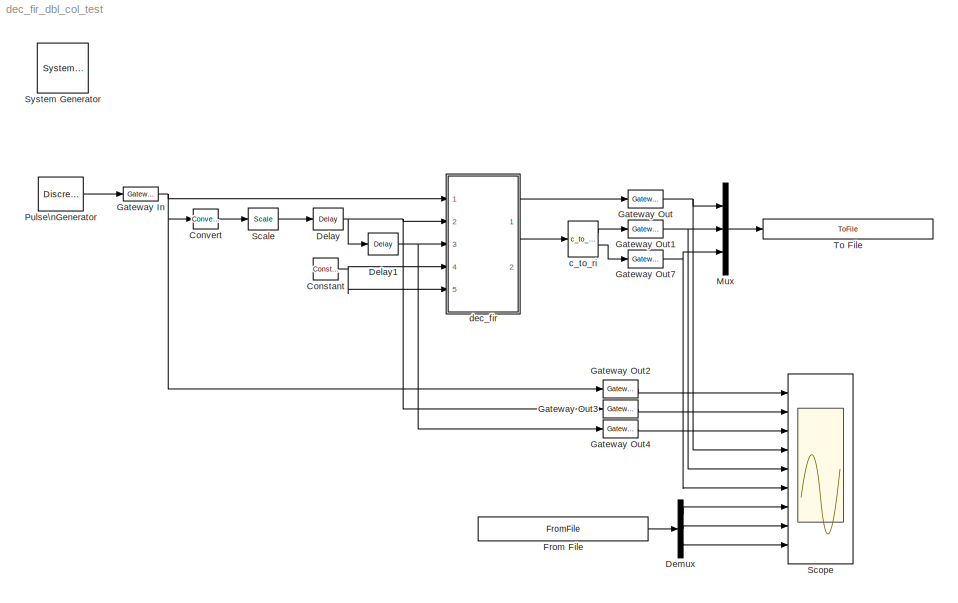
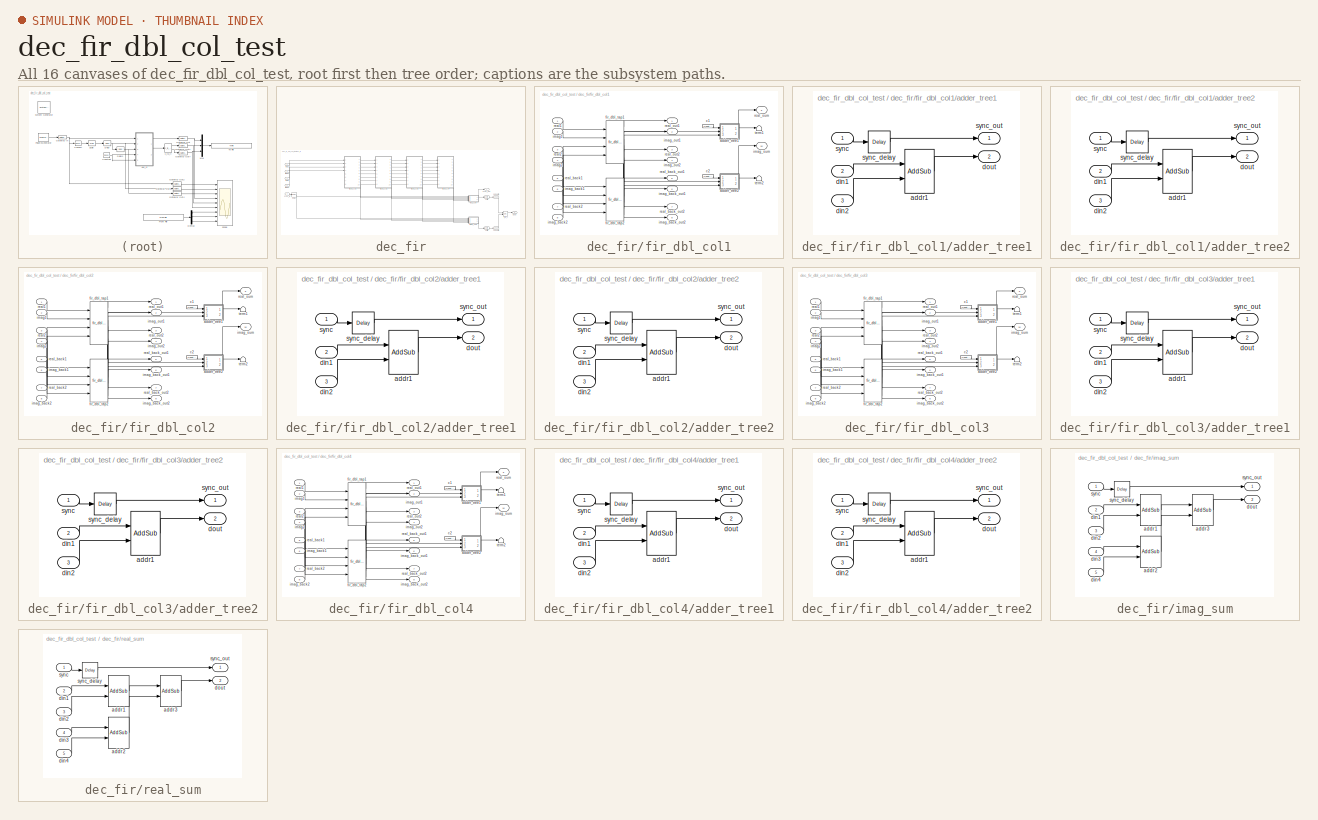
[diagram: thumbnail index - all 16 canvases of the model, root first then tree order]
MODEL dec_fir_dbl_col_test
KIND model
BLOCK [Reference]  System Generator  REF=xbsIndex_r4/ System Generator
  AttributesFormatString = System\\nGenerator
  FunctionWithSeparateData = off
  Ports = []
  RTWMemSecDataConstants = Inherit from model
  RTWMemSecDataInternal = Inherit from model
  RTWMemSecDataParameters = Inherit from model
  RTWMemSecFuncExecute = Inherit from model
  RTWMemSecFuncInitTerm = Inherit from model
  ShowPortLabels = FromPortIcon
  SourceBlock = xbsIndex_r4/ System Generator
  SourceType = Xilinx System Generator Block
  SystemSampleTime = -1
  Tag = genX
  UserData = DataTag0
  UserDataPersistent = on
  block_type = sysgen
  block_version = 10.1.1
  clock_wrapper = Clock Enables
  core_generation = According to Block Masks
  dbl_ovrd = According to Block Masks
  dcm_input_clock_period = 100
  deprecated_control = off
  directory = ./netlist
  eval_field = 0
  has_advanced_control = 0
  incr_netlist = off
  infoedit = System Generator
  package = ff668
  part = xc4vsx35
  run_coregen = off
  sg_icon_stat = 51,50,-1,-1,red,beige,0,07734,right
  sg_mask_display = fprintf('','COMMENT: begin icon graphics');\npatch([0 51 51 0 ],[0 0 50 50 ],[0.93 0.92 0.86]);\npatch([12 4 16 4 12 25 29 33 47 36 25 17 29 17 25 36 47 33 29 25 12 ],[5 13 25 37 45 45 41 45 45 34 45 37 25 13 5 16 5 5 9 5 5 ],[0.6 0.2 0.25]);\nplot([0 51 51 0 0 ],[0 0 50 50 0 ]);\nfprintf('','COMMENT: end icon graphics');\nfprintf('','COMMENT: begin icon text');\nfprintf('','COMMENT: end icon text...<+5ch>
  sggui_pos = -1,-1,-1,-1
  simulink_period = 1
  speed = -10
  synthesis_tool = XST
  sysclk_period = 100
  testbench = off
  trim_vbits = Everywhere in SubSystem
  xilinxfamily = Virtex4
BLOCK [Reference] Constant  REF=xbsIndex_r4/Constant
  Ports = [0, 1]
  SourceBlock = xbsIndex_r4/Constant
  SourceType = Xilinx Constant Block Block
  arith_type = Signed (2's comp)
  bin_pt = 9
  block_type = constant
  block_version = 11.4
  carry = CIN
  const = 0
  dbl_ovrd = off
  dsp48_infoedit = The use of this block for DSP48 instructions is deprecated.  Please use the Opmode block.
  equ = P=C
  explicit_period = on
  has_advanced_control = 0
  inp1 = P
  inp2 = PCIN>>17
  n_bits = 10
  opr = +
  opselect = C
  period = 1
  sg_icon_stat = 25,22,0,1,white,blue,0,bf4ddd8b,right,
  sg_list_contents = {'table'=>{'carry'=>'popup(0|1|CIN|~SIGN(P or PCIN)|~SIGN(A*B or A:B)|~SIGND(A*B or A:B))','inp1'=>'popup(0|P|A:B|A*B|C|P+C|A:B+C)','inp2'=>'popup(0|PCIN|P|C|PCIN>>17|P>>17)','opselect'=>'popup(C + A*B|PCIN + A*B|P + A*B|A * B|C + A:B|C - A:B|C|Custom)','userSelections'=>{'carry'=>'CIN','inp1'=>'P','inp2'=>'PCIN>>17','opselect'=>'C'}}}
  sg_mask_display = fprintf('','COMMENT: begin icon graphics');\npatch([0 1 1 0 ],[0 0 1 1 ],[0.77 0.82 0.91]);\npatch([0.28 0.12 0.32 0.12 0.28 0.52 0.6 0.68 0.92 0.72 0.52 0.4 0.64 0.4 0.52 0.72 0.92 0.68 0.6 0.52 0.28 ],[0.0909091 0.272727 0.5 0.727273 0.909091 0.909091 0.818182 0.909091 0.909091 0.681818 0.909091 0.772727 0.5 0.227273 0.0909091 0.318182 0.0909091 0.0909091 0.181818 0.0909091 0.0909091 ],[0.98 0.9...<+212ch>
  sggui_pos = 21,71,474,439
BLOCK [Reference] Convert  REF=xbsIndex_r4/Convert
  Ports = [1, 1]
  SourceBlock = xbsIndex_r4/Convert
  SourceType = Xilinx Type Converter Block
  arith_type = Signed  (2's comp)
  bin_pt = 8
  block_type = convert
  block_version = 11.4
  dbl_ovrd = off
  has_advanced_control = 0
  infoedit = Hardware notes: rounding and saturating require hardware resources; truncating and wrapping do not.
  latency = 0
  n_bits = 10
  overflow = Wrap
  pipeline = off
  quantization = Truncate
  sg_icon_stat = 25,20,1,1,white,blue,0,edca21da,right,
  sg_mask_display = fprintf('','COMMENT: begin icon graphics');\npatch([0 1 1 0 ],[0 0 1 1 ],[0.77 0.82 0.91]);\npatch([0.28 0.16 0.36 0.16 0.28 0.48 0.52 0.56 0.8 0.64 0.48 0.36 0.56 0.36 0.48 0.64 0.8 0.56 0.52 0.48 0.28 ],[0.1 0.25 0.5 0.75 0.9 0.9 0.85 0.9 0.9 0.7 0.9 0.75 0.5 0.25 0.1 0.3 0.1 0.1 0.15 0.1 0.1 ],[0.98 0.96 0.92]);\nplot([0 1 1 0 0 ],[0 0 1 1 0 ]);\nfprintf('','COMMENT: end icon graphics');\nfprin...<+122ch>
  sggui_pos = 26,206,538,429
  xl_area = [0,0,0,0,0,0,0]
  xl_use_area = off
BLOCK [Reference] Delay  REF=xbsIndex_r4/Delay
  Ports = [1, 1]
  SourceBlock = xbsIndex_r4/Delay
  SourceType = Xilinx Delay Block
  block_type = delay
  block_version = 11.4
  dbl_ovrd = off
  en = off
  has_advanced_control = 0
  infoedit = Hardware notes: A delay line is a chain, each link of which is an SRL16 followed by a flip-flop.
  latency = 1
  reg_retiming = off
  sg_icon_stat = 30,22,1,1,white,blue,0,07b98262,right,
  sg_mask_display = fprintf('','COMMENT: begin icon graphics');\npatch([0 1 1 0 ],[0 0 1 1 ],[0.77 0.82 0.91]);\npatch([0.3 0.166667 0.333333 0.166667 0.3 0.5 0.566667 0.633333 0.833333 0.666667 0.5 0.4 0.6 0.4 0.5 0.666667 0.833333 0.633333 0.566667 0.5 0.3 ],[0.0909091 0.272727 0.5 0.727273 0.909091 0.909091 0.818182 0.909091 0.909091 0.681818 0.909091 0.772727 0.5 0.227273 0.0909091 0.318182 0.0909091 0.0909091 0....<+253ch>
  sggui_pos = -1,-1,-1,-1
  xl_area = [0,0,0,0,0,0,0]
  xl_use_area = off
BLOCK [Reference] Delay1  REF=xbsIndex_r4/Delay
  Ports = [1, 1]
  SourceBlock = xbsIndex_r4/Delay
  SourceType = Xilinx Delay Block
  block_type = delay
  block_version = 11.4
  dbl_ovrd = off
  en = off
  has_advanced_control = 0
  infoedit = Hardware notes: A delay line is a chain, each link of which is an SRL16 followed by a flip-flop.
  latency = 1
  reg_retiming = off
  sg_icon_stat = 30,22,1,1,white,blue,0,07b98262,right,
  sg_mask_display = fprintf('','COMMENT: begin icon graphics');\npatch([0 1 1 0 ],[0 0 1 1 ],[0.77 0.82 0.91]);\npatch([0.3 0.166667 0.333333 0.166667 0.3 0.5 0.566667 0.633333 0.833333 0.666667 0.5 0.4 0.6 0.4 0.5 0.666667 0.833333 0.633333 0.566667 0.5 0.3 ],[0.0909091 0.272727 0.5 0.727273 0.909091 0.909091 0.818182 0.909091 0.909091 0.681818 0.909091 0.772727 0.5 0.227273 0.0909091 0.318182 0.0909091 0.0909091 0....<+253ch>
  sggui_pos = -1,-1,-1,-1
  xl_area = [0,0,0,0,0,0,0]
  xl_use_area = off
BLOCK [Demux] Demux
  DisplayOption = bar
  Outputs = 3
  Ports = [1, 3]
BLOCK [FromFile] From File
  FileName = dec_fir_dbl_col_test_reference.mat
  SampleTime = 1
BLOCK [Reference] Gateway In  REF=xbsIndex_r4/Gateway In
  LOCs = {}
  Ports = [1, 1]
  SourceBlock = xbsIndex_r4/Gateway In
  SourceType = Xilinx Gateway In Block
  arith_type = Boolean
  bin_pt = 14
  block_type = gatewayin
  block_version = 10.1.1
  dbl_ovrd = off
  has_advanced_control = 0
  hdl_port = on
  infoedit = Gateway in block.  Converts inputs of type Simulink integer, double and fixed point to  Xilinx fixed point type.<P><P>Hardware notes:  In hardware these blocks become top level input ports.
  locs_specified = off
  n_bits = 16
  overflow = Saturate
  period = 1
  quantization = Round  (unbiased: +/- Inf)
  sg_icon_stat = 35,14,1,1,white,yellow,0,00d3666e,right,
  sg_mask_display = fprintf('','COMMENT: begin icon graphics');\npatch([0 1 1 0 ],[0 0 1 1 ],[0.95 0.93 0.65]);\npatch([0.371429 0.314286 0.4 0.314286 0.371429 0.485714 0.514286 0.542857 0.657143 0.571429 0.485714 0.428571 0.514286 0.428571 0.485714 0.571429 0.657143 0.542857 0.514286 0.485714 0.371429 ],[0.142857 0.285714 0.5 0.714286 0.857143 0.857143 0.785714 0.857143 0.857143 0.642857 0.857143 0.714286 0.5 0.2857...<+370ch>
  sggui_pos = 58,78,419,481
  timing_constraint = None
  xl_area = [0,0,0,0,0,0,0]
  xl_use_area = off
BLOCK [Reference] Gateway Out  REF=xbsIndex_r4/Gateway Out
  LOCs = {}
  Ports = [1, 1]
  SourceBlock = xbsIndex_r4/Gateway Out
  SourceType = Xilinx Gateway Out Block
  block_type = gatewayout
  block_version = 11.4
  has_advanced_control = 0
  hdl_port = on
  infoedit = Gateway out block.  Converts Xilinx fixed point inputs into ouputs of type Simulink integer, double, or fixed point.<br><br>Hardware notes:  In hardware these blocks become top level output ports or are discarded, depending on how they are configured.  <repeated x6 — deduplicated; at blocks: Gateway Out, Gateway Out1, Gateway Out2, Gateway Out3, Gateway Out4, Gateway Out7>
  locs_specified = off
  sg_icon_stat = 35,18,1,1,white,yellow,0,cc31b7ac,right,
  sg_mask_display = fprintf('','COMMENT: begin icon graphics');\npatch([0 1 1 0 ],[0 0 1 1 ],[0.95 0.93 0.65]);\npatch([0.371429 0.285714 0.4 0.285714 0.371429 0.514286 0.542857 0.571429 0.714286 0.6 0.485714 0.4 0.514286 0.4 0.485714 0.6 0.714286 0.571429 0.542857 0.514286 0.371429 ],[0.111111 0.277778 0.5 0.722222 0.888889 0.888889 0.833333 0.888889 0.888889 0.666667 0.888889 0.722222 0.5 0.277778 0.111111 0.333333...<+351ch>  <repeated x6 — deduplicated; at blocks: Gateway Out, Gateway Out1, Gateway Out2, Gateway Out3, Gateway Out4, Gateway Out7>
  sggui_pos = -1,-1,-1,-1
  timing_constraint = None
  xl_area = [0,0,0,0,0,0,0]
  xl_use_area = off
BLOCK [Reference] Gateway Out1  REF=xbsIndex_r4/Gateway Out
  LOCs = {}
  Ports = [1, 1]
  SourceBlock = xbsIndex_r4/Gateway Out
  SourceType = Xilinx Gateway Out Block
  block_type = gatewayout
  block_version = 11.4
  has_advanced_control = 0
  hdl_port = on
  locs_specified = off
  sg_icon_stat = 35,18,1,1,white,yellow,0,cc31b7ac,right,
  sggui_pos = 21,71,403,473
  timing_constraint = None
  xl_area = [0,0,0,0,0,0,0]
  xl_use_area = off
BLOCK [Reference] Gateway Out2  REF=xbsIndex_r4/Gateway Out
  LOCs = {}
  Ports = [1, 1]
  SourceBlock = xbsIndex_r4/Gateway Out
  SourceType = Xilinx Gateway Out Block
  block_type = gatewayout
  block_version = 11.4
  has_advanced_control = 0
  hdl_port = on
  locs_specified = off
  sg_icon_stat = 35,18,1,1,white,yellow,0,cc31b7ac,right,
  sggui_pos = -1,-1,-1,-1
  timing_constraint = None
  xl_area = [0,0,0,0,0,0,0]
  xl_use_area = off
BLOCK [Reference] Gateway Out3  REF=xbsIndex_r4/Gateway Out
  LOCs = {}
  Ports = [1, 1]
  SourceBlock = xbsIndex_r4/Gateway Out
  SourceType = Xilinx Gateway Out Block
  block_type = gatewayout
  block_version = 11.4
  has_advanced_control = 0
  hdl_port = on
  locs_specified = off
  sg_icon_stat = 35,18,1,1,white,yellow,0,cc31b7ac,right,
  sggui_pos = -1,-1,-1,-1
  timing_constraint = None
  xl_area = [0,0,0,0,0,0,0]
  xl_use_area = off
BLOCK [Reference] Gateway Out4  REF=xbsIndex_r4/Gateway Out
  LOCs = {}
  Ports = [1, 1]
  SourceBlock = xbsIndex_r4/Gateway Out
  SourceType = Xilinx Gateway Out Block
  block_type = gatewayout
  block_version = 11.4
  has_advanced_control = 0
  hdl_port = on
  locs_specified = off
  sg_icon_stat = 35,18,1,1,white,yellow,0,cc31b7ac,right,
  sggui_pos = -1,-1,-1,-1
  timing_constraint = None
  xl_area = [0,0,0,0,0,0,0]
  xl_use_area = off
BLOCK [Reference] Gateway Out7  REF=xbsIndex_r4/Gateway Out
  LOCs = {}
  Ports = [1, 1]
  SourceBlock = xbsIndex_r4/Gateway Out
  SourceType = Xilinx Gateway Out Block
  block_type = gatewayout
  block_version = 11.4
  has_advanced_control = 0
  hdl_port = on
  locs_specified = off
  sg_icon_stat = 35,18,1,1,white,yellow,0,cc31b7ac,right,
  sggui_pos = -1,-1,-1,-1
  timing_constraint = None
  xl_area = [0,0,0,0,0,0,0]
  xl_use_area = off
BLOCK [Mux] Mux
  DisplayOption = bar
  Inputs = 3
  Ports = [3, 1]
BLOCK [DiscretePulseGenerator] Pulse\nGenerator
  Period = 128
  PhaseDelay = 15
  Ports = [0, 1]
BLOCK [Reference] Scale  REF=xbsIndex_r4/Scale
  Ports = [1, 1]
  SourceBlock = xbsIndex_r4/Scale
  SourceType = Xilinx Input Scaler Block
  block_type = scale
  block_version = 11.4
  dbl_ovrd = off
  has_advanced_control = 0
  infoedit = Scales input by a power of two by adjusting the binary point position.<br><br>Hardware notes: In hardware this block costs nothing.
  scale_factor = -1
  sg_icon_stat = 30,22,1,1,white,blue,0,315b7d78,right,
  sg_mask_display = fprintf('','COMMENT: begin icon graphics');\npatch([0 1 1 0 ],[0 0 1 1 ],[0.77 0.82 0.91]);\npatch([0.3 0.166667 0.333333 0.166667 0.3 0.5 0.566667 0.633333 0.833333 0.666667 0.5 0.4 0.6 0.4 0.5 0.666667 0.833333 0.633333 0.566667 0.5 0.3 ],[0.0909091 0.272727 0.5 0.727273 0.909091 0.909091 0.818182 0.909091 0.909091 0.681818 0.909091 0.772727 0.5 0.227273 0.0909091 0.318182 0.0909091 0.0909091 0....<+259ch>
  sggui_pos = 23,125,348,233
BLOCK [Scope] Scope
  DataFormat = StructureWithTime
  Floating = off
  NumInputPorts = 9
  Ports = [9]
  SampleTime = 0
  YMax = 5~5~5~5~5~5~5~5~5
  YMin = -5~-5~-5~-5~-5~-5~-5~-5~-5
  ZoomMode = xonly
BLOCK [ToFile] To File
  Filename = dec_fir_dbl_col_test_output.mat
  MatrixName = output
BLOCK [Reference] c_to_ri  REF=casper_library_misc/c_to_ri  (lib defined in mdl_357510c33b49, mdl_57b5f564ae26, +4 more)
  AttributesFormatString = 10_9 r/i
  FunctionWithSeparateData = off
  Ports = [1, 2]
  RTWMemSecDataConstants = Inherit from model
  RTWMemSecDataInternal = Inherit from model
  RTWMemSecDataParameters = Inherit from model
  RTWMemSecFuncExecute = Inherit from model
  RTWMemSecFuncInitTerm = Inherit from model
  ShowPortLabels = FromPortIcon
  SourceBlock = casper_library_misc/c_to_ri
  SourceType = c_to_ri
  SystemSampleTime = -1
  UserData = DataTag1
  UserDataPersistent = on
  bin_pt = 9
  n_bits = 10
BLOCK [SubSystem] dec_fir
  AncestorBlock = casper_library_downconverter/dec_fir
  AttributesFormatString = 16 taps\n10_9 r/i
  FunctionWithSeparateData = off
  MaskCallbackString = ||||||||||
  MaskDescription = FIR filter which can handle multiple time samples in parallel and decimates down to 1 time sample.  If coefficients are symmetric, will automatically fold before multiplying.
  MaskEnableString = on,on,on,on,on,on,on,on,on,on,on
  MaskHelp = eval('xlWeb(''http://casper.berkeley.edu/wiki/Dec_fir'')')
  MaskHideContents = off
  MaskIconFrame = on
  MaskIconOpaque = on
  MaskIconRotate = none
  MaskIconUnits = autoscale
  MaskInitialization = dec_fir_init(gcb, ...\n    'n_inputs', n_inputs, ...\n    'coeff', coeff, ...\n    'n_bits', n_bits, ...\n    'quantization', quantization, ...\n    'add_latency', add_latency, ...\n    'mult_latency', mult_latency, ...\n    'conv_latency', conv_latency, ...\n    'coeff_bit_width', coeff_bit_width, ...\n    'coeff_bin_pt', coeff_bin_pt, ...\n    'absorb_adders', absorb_adders, ...\n    'adder_imp'...<+13ch>
  MaskPromptString = Number of Parallel Streams|Coefficients|Bit Width Out|Quantization Behavior|Add Latency|Mult Latency|Convert latency|Coefficient bit width|Coefficient binary point|Absorb adders into DSP slices|Adder implementation
  MaskSelfModifiable = on
  MaskStyleString = edit,edit,edit,popup(Truncate|Round  (unbiased: +/- Inf)|Round  (unbiased: Even Values)),edit,edit,edit,edit,edit,checkbox,popup(Behavioral|Fabric|DSP48)
  MaskTabNameString = ,,,,,,,,,,
  MaskToolTipString = on,on,on,on,on,on,on,on,on,on,on
  MaskTunableValueString = on,on,on,on,on,on,on,on,on,on,on
  MaskType = dec_fir
  MaskValueString = 2|getfield( getfield( get_param( gcb,'UserData' ), 'parameters'),'coeff')|10|Round  (unbiased: Even Values)|2|3|2|18|17|off|DSP48
  MaskVarAliasString = ,,,,,,,,,,
  MaskVariables = n_inputs=@1;coeff=@2;n_bits=@3;quantization=&4;add_latency=@5;mult_latency=@6;conv_latency=@7;coeff_bit_width=@8;coeff_bin_pt=@9;absorb_adders=&10;adder_imp=&11;
  MaskVisibilityString = on,on,on,on,on,on,on,on,on,on,on
  MinAlgLoopOccurrences = off
  Opaque = off
  Ports = [5, 2]
  PropExecContextOutsideSubsystem = off
  RTWSystemCode = Auto
  RequestExecContextInheritance = off
  UserData = DataTag2
  UserDataPersistent = on
BLOCK [Reference] dec_fir/convert1  REF=xbsIndex_r4/Convert
  Ports = [1, 1]
  SourceBlock = xbsIndex_r4/Convert
  SourceType = Xilinx Type Converter Block
  arith_type = Signed  (2's comp)
  bin_pt = 9
  block_type = convert
  block_version = 11.4
  dbl_ovrd = off
  has_advanced_control = 0
  infoedit = Hardware notes: rounding and saturating require hardware resources; truncating and wrapping do not.
  latency = 2
  n_bits = 10
  overflow = Wrap
  pipeline = off
  quantization = Round  (unbiased: Even Values)
  sg_icon_stat = 30,16,1,1,white,blue,0,5129c5aa,right,
  sg_mask_display = fprintf('','COMMENT: begin icon graphics');\npatch([0 1 1 0 ],[0 0 1 1 ],[0.77 0.82 0.91]);\npatch([0.366667 0.266667 0.4 0.266667 0.366667 0.5 0.533333 0.566667 0.733333 0.6 0.5 0.433333 0.566667 0.433333 0.5 0.6 0.733333 0.566667 0.533333 0.5 0.366667 ],[0.125 0.3125 0.5625 0.8125 1 1 0.9375 1 1 0.75 0.9375 0.8125 0.5625 0.3125 0.1875 0.375 0.125 0.125 0.1875 0.125 0.125 ],[0.98 0.96 0.92]);\npl...<+258ch>
  sggui_pos = -1,-1,-1,-1
  xl_area = [0,0,0,0,0,0,0]
  xl_use_area = off
BLOCK [Reference] dec_fir/convert2  REF=xbsIndex_r4/Convert
  Ports = [1, 1]
  SourceBlock = xbsIndex_r4/Convert
  SourceType = Xilinx Type Converter Block
  arith_type = Signed  (2's comp)
  bin_pt = 9
  block_type = convert
  block_version = 11.4
  dbl_ovrd = off
  has_advanced_control = 0
  infoedit = Hardware notes: rounding and saturating require hardware resources; truncating and wrapping do not.
  latency = 2
  n_bits = 10
  overflow = Wrap
  pipeline = off
  quantization = Round  (unbiased: Even Values)
  sg_icon_stat = 30,16,1,1,white,blue,0,5129c5aa,right,
  sg_mask_display = fprintf('','COMMENT: begin icon graphics');\npatch([0 1 1 0 ],[0 0 1 1 ],[0.77 0.82 0.91]);\npatch([0.366667 0.266667 0.4 0.266667 0.366667 0.5 0.533333 0.566667 0.733333 0.6 0.5 0.433333 0.566667 0.433333 0.5 0.6 0.733333 0.566667 0.533333 0.5 0.366667 ],[0.125 0.3125 0.5625 0.8125 1 1 0.9375 1 1 0.75 0.9375 0.8125 0.5625 0.3125 0.1875 0.375 0.125 0.125 0.1875 0.125 0.125 ],[0.98 0.96 0.92]);\npl...<+258ch>
  sggui_pos = -1,-1,-1,-1
  xl_area = [0,0,0,0,0,0,0]
  xl_use_area = off
BLOCK [Reference] dec_fir/delay  REF=xbsIndex_r4/Delay
  Ports = [1, 1]
  SourceBlock = xbsIndex_r4/Delay
  SourceType = Xilinx Delay Block
  block_type = delay
  block_version = 11.4
  dbl_ovrd = off
  en = off
  has_advanced_control = 0
  infoedit = Hardware notes: A delay line is a chain, each link of which is an SRL16 followed by a flip-flop.
  latency = 9
  reg_retiming = off
  sg_icon_stat = 30,30,1,1,white,blue,0,c2fef566,right,
  sg_mask_display = fprintf('','COMMENT: begin icon graphics');\npatch([0 1 1 0 ],[0 0 1 1 ],[0.77 0.82 0.91]);\npatch([0.233333 0.0666667 0.3 0.0666667 0.233333 0.5 0.566667 0.633333 0.9 0.666667 0.466667 0.3 0.5 0.3 0.466667 0.666667 0.9 0.633333 0.566667 0.5 0.233333 ],[0.1 0.266667 0.5 0.733333 0.9 0.9 0.833333 0.9 0.9 0.666667 0.866667 0.7 0.5 0.3 0.133333 0.333333 0.1 0.1 0.166667 0.1 0.1 ],[0.98 0.96 0.92]);\n...<+204ch>  <repeated x11 — deduplicated; at blocks: delay, sync_delay>
  sggui_pos = -1,-1,-1,-1
  xl_area = [0,0,0,0,0,0,0]
  xl_use_area = off
BLOCK [Outport] dec_fir/dout
  IconDisplay = Port number
  Port = 2
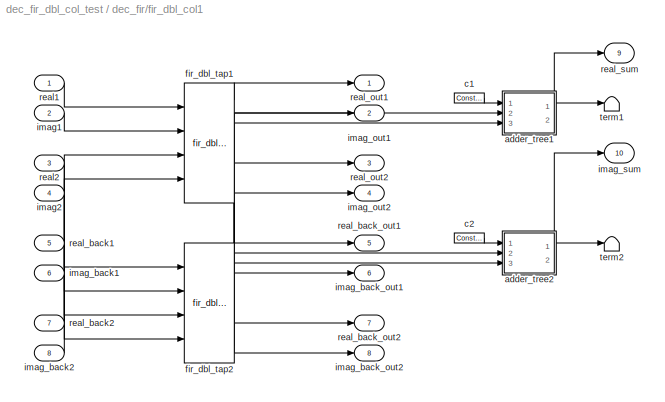
BLOCK [SubSystem] dec_fir/fir_dbl_col1
  AncestorBlock = casper_library_downconverter/fir_dbl_col
  FunctionWithSeparateData = off
  MaskCallbackString = |||||||
  MaskEnableString = on,on,on,on,on,on,on,on
  MaskHelp = eval('xlWeb(''http://casper.berkeley.edu/wiki/Fir_dbl_col'')')
  MaskHideContents = off
  MaskIconFrame = on
  MaskIconOpaque = on
  MaskIconRotate = none
  MaskIconUnits = autoscale
  MaskInitialization = fir_dbl_col_init(gcb, ...\n    'n_inputs', n_inputs, ...\n    'coeff', coeff, ...\n    'mult_latency', mult_latency, ...\n    'add_latency', add_latency, ...\n    'coeff_bit_width', coeff_bit_width, ...\n    'coeff_bin_pt', coeff_bin_pt,  ...\n    'first_stage_hdl', first_stage_hdl, ...\n    'adder_imp', adder_imp);  <repeated x4 — deduplicated; at blocks: fir_dbl_col1, fir_dbl_col2, fir_dbl_col3, fir_dbl_col4>
  MaskPromptString = Inputs|Coefficients|Add latency|Mult Latency|Coefficient bit width|Coefficient binary point|Implement first stage of adder trees on output as behavioural HDL|Adder implementation
  MaskSelfModifiable = on
  MaskStyleString = edit,edit,edit,edit,edit,edit,checkbox,popup(Behavioral|Fabric|DSP48)
  MaskTabNameString = ,,,,,,,
  MaskToolTipString = on,on,on,on,on,on,on,on
  MaskTunableValueString = on,on,on,on,on,on,on,on
  MaskType = fir_dbl_col
  MaskValueString = 2|[0.2         0.1]|2|3|18|17|off|DSP48
  MaskVarAliasString = ,,,,,,,
  MaskVariables = n_inputs=@1;coeff=@2;add_latency=@3;mult_latency=@4;coeff_bit_width=@5;coeff_bin_pt=@6;first_stage_hdl=&7;adder_imp=&8;
  MaskVisibilityString = on,on,on,on,on,on,on,on
  MinAlgLoopOccurrences = off
  Opaque = off
  Ports = [8, 10]
  PropExecContextOutsideSubsystem = off
  RTWSystemCode = Auto
  RequestExecContextInheritance = off
  UserData = DataTag3
  UserDataPersistent = on
BLOCK [SubSystem] dec_fir/fir_dbl_col1/adder_tree1
  AncestorBlock = casper_library_misc/adder_tree
  AttributesFormatString = latency 2
  FunctionWithSeparateData = off
  MaskCallbackString = |||
  MaskDescription = Sums all inputs using a tree of adds and delays.\n\nNumber of inputs: The number of inputs to the block to be summed\nAdd latency: The number of clock cycles to perform one addition (affects timing)..\nAdder implementation: choice of fabric or DSP48E core, or behavioral HDL\nUse behavioural HDL for first stage of adders: Causes the first stage of adders to be absorbed into DSP blocks if multiplier...<+59ch>  <repeated x10 — deduplicated; at blocks: adder_tree1, adder_tree2, imag_sum, real_sum>
  MaskEnableString = on,on,on,on
  MaskHelp = eval('xlWeb(''http://casper.berkeley.edu/wiki/Adder_tree'')')
  MaskHideContents = off
  MaskIconFrame = on
  MaskIconOpaque = on
  MaskIconRotate = none
  MaskIconUnits = autoscale
  MaskInitialization = adder_tree_init(gcb, ...\n    'n_inputs', n_inputs, ...\n    'latency', latency, ...\n    'adder_imp', adder_imp, ...\n    'first_stage_hdl', first_stage_hdl);
  MaskPromptString = Number of Inputs|Add Latency|Adder implementation|Use behavioural HDL for first stage of adders
  MaskSelfModifiable = on
  MaskStyleString = edit,edit,popup(Behavioral|Fabric|DSP48),checkbox
  MaskTabNameString = ,,,
  MaskToolTipString = on,on,on,on
  MaskTunableValueString = on,on,on,on
  MaskType = adder_tree
  MaskValueString = 2|2|DSP48|off
  MaskVarAliasString = ,,,
  MaskVariables = n_inputs=@1;latency=@2;adder_imp=&3;first_stage_hdl=&4;
  MaskVisibilityString = on,on,on,on
  MinAlgLoopOccurrences = off
  Opaque = off
  Ports = [3, 2]
  PropExecContextOutsideSubsystem = off
  RTWSystemCode = Auto
  RequestExecContextInheritance = off
  UserData = DataTag4
  UserDataPersistent = on
BLOCK [Reference] dec_fir/fir_dbl_col1/adder_tree1/addr1  REF=xbsIndex_r4/AddSub
  Ports = [2, 1]
  SourceBlock = xbsIndex_r4/AddSub
  SourceType = Xilinx Adder/Subtracter Block
  arith_type = Unsigned
  bin_pt = 14
  block_type = addsub
  block_version = 11.4
  dbl_ovrd = off
  en = off
  has_advanced_control = 0
  hw_selection = DSP48
  latency = 2
  mode = Addition
  n_bits = 16
  overflow = Wrap
  pipelined = on
  precision = Full
  quantization = Truncate
  sg_icon_stat = 40,60,2,1,white,blue,0,4922a24f,right,
  sg_mask_display = fprintf('','COMMENT: begin icon graphics');\npatch([0 1 1 0 ],[0 0 1 1 ],[0.77 0.82 0.91]);\npatch([0.25 0.075 0.3 0.075 0.25 0.525 0.6 0.675 0.95 0.725 0.5 0.35 0.6 0.35 0.5 0.725 0.95 0.675 0.6 0.525 0.25 ],[0.233333 0.35 0.5 0.65 0.766667 0.766667 0.716667 0.766667 0.766667 0.616667 0.766667 0.666667 0.5 0.333333 0.233333 0.383333 0.233333 0.233333 0.283333 0.233333 0.233333 ],[0.98 0.96 0.92])...<+386ch>  <repeated x14 — deduplicated; at blocks: addr1, addr2, addr3>
  sggui_pos = 22,98,419,344
  use_behavioral_HDL = off
  use_carryin = off
  use_carryout = off
  use_rpm = on
  xl_area = [0,0,0,0,0,0,0]
  xl_use_area = off
BLOCK [Inport] dec_fir/fir_dbl_col1/adder_tree1/din1
  IconDisplay = Port number
  Port = 2
BLOCK [Inport] dec_fir/fir_dbl_col1/adder_tree1/din2
  IconDisplay = Port number
  Port = 3
BLOCK [Outport] dec_fir/fir_dbl_col1/adder_tree1/dout
  IconDisplay = Port number
  Port = 2
BLOCK [Inport] dec_fir/fir_dbl_col1/adder_tree1/sync
  IconDisplay = Port number
BLOCK [Reference] dec_fir/fir_dbl_col1/adder_tree1/sync_delay  REF=xbsIndex_r4/Delay
  Ports = [1, 1]
  SourceBlock = xbsIndex_r4/Delay
  SourceType = Xilinx Delay Block
  block_type = delay
  block_version = 11.4
  dbl_ovrd = off
  en = off
  has_advanced_control = 0
  infoedit = Hardware notes: A delay line is a chain, each link of which is an SRL16 followed by a flip-flop.
  latency = 2
  reg_retiming = on
  sg_icon_stat = 30,30,1,1,white,blue,0,85ce9542,right,
  sggui_pos = 21,71,419,315
  xl_area = [0,0,0,0,0,0,0]
  xl_use_area = off
BLOCK [Outport] dec_fir/fir_dbl_col1/adder_tree1/sync_out
  IconDisplay = Port number
BLOCK [SubSystem] dec_fir/fir_dbl_col1/adder_tree2
  AncestorBlock = casper_library_misc/adder_tree
  AttributesFormatString = latency 2
  FunctionWithSeparateData = off
  MaskCallbackString = |||
  MaskEnableString = on,on,on,on
  MaskHelp = eval('xlWeb(''http://casper.berkeley.edu/wiki/Adder_tree'')')
  MaskHideContents = off
  MaskIconFrame = on
  MaskIconOpaque = on
  MaskIconRotate = none
  MaskIconUnits = autoscale
  MaskInitialization = adder_tree_init(gcb, ...\n    'n_inputs', n_inputs, ...\n    'latency', latency, ...\n    'adder_imp', adder_imp, ...\n    'first_stage_hdl', first_stage_hdl);
  MaskPromptString = Number of Inputs|Add Latency|Adder implementation|Use behavioural HDL for first stage of adders
  MaskSelfModifiable = on
  MaskStyleString = edit,edit,popup(Behavioral|Fabric|DSP48),checkbox
  MaskTabNameString = ,,,
  MaskToolTipString = on,on,on,on
  MaskTunableValueString = on,on,on,on
  MaskType = adder_tree
  MaskValueString = 2|2|DSP48|off
  MaskVarAliasString = ,,,
  MaskVariables = n_inputs=@1;latency=@2;adder_imp=&3;first_stage_hdl=&4;
  MaskVisibilityString = on,on,on,on
  MinAlgLoopOccurrences = off
  Opaque = off
  Ports = [3, 2]
  PropExecContextOutsideSubsystem = off
  RTWSystemCode = Auto
  RequestExecContextInheritance = off
  UserData = DataTag5
  UserDataPersistent = on
BLOCK [Reference] dec_fir/fir_dbl_col1/adder_tree2/addr1  REF=xbsIndex_r4/AddSub
  Ports = [2, 1]
  SourceBlock = xbsIndex_r4/AddSub
  SourceType = Xilinx Adder/Subtracter Block
  arith_type = Unsigned
  bin_pt = 14
  block_type = addsub
  block_version = 11.4
  dbl_ovrd = off
  en = off
  has_advanced_control = 0
  hw_selection = DSP48
  latency = 2
  mode = Addition
  n_bits = 16
  overflow = Wrap
  pipelined = on
  precision = Full
  quantization = Truncate
  sg_icon_stat = 40,60,2,1,white,blue,0,4922a24f,right,
  sggui_pos = 22,98,419,344
  use_behavioral_HDL = off
  use_carryin = off
  use_carryout = off
  use_rpm = on
  xl_area = [0,0,0,0,0,0,0]
  xl_use_area = off
BLOCK [Inport] dec_fir/fir_dbl_col1/adder_tree2/din1
  IconDisplay = Port number
  Port = 2
BLOCK [Inport] dec_fir/fir_dbl_col1/adder_tree2/din2
  IconDisplay = Port number
  Port = 3
BLOCK [Outport] dec_fir/fir_dbl_col1/adder_tree2/dout
  IconDisplay = Port number
  Port = 2
BLOCK [Inport] dec_fir/fir_dbl_col1/adder_tree2/sync
  IconDisplay = Port number
BLOCK [Reference] dec_fir/fir_dbl_col1/adder_tree2/sync_delay  REF=xbsIndex_r4/Delay
  Ports = [1, 1]
  SourceBlock = xbsIndex_r4/Delay
  SourceType = Xilinx Delay Block
  block_type = delay
  block_version = 11.4
  dbl_ovrd = off
  en = off
  has_advanced_control = 0
  infoedit = Hardware notes: A delay line is a chain, each link of which is an SRL16 followed by a flip-flop.
  latency = 2
  reg_retiming = on
  sg_icon_stat = 30,30,1,1,white,blue,0,85ce9542,right,
  sggui_pos = 21,71,419,315
  xl_area = [0,0,0,0,0,0,0]
  xl_use_area = off
BLOCK [Outport] dec_fir/fir_dbl_col1/adder_tree2/sync_out
  IconDisplay = Port number
BLOCK [Reference] dec_fir/fir_dbl_col1/c1  REF=xbsIndex_r4/Constant
  Ports = [0, 1]
  SourceBlock = xbsIndex_r4/Constant
  SourceType = Xilinx Constant Block Block
  arith_type = Signed (2's comp)
  bin_pt = 14
  block_type = constant
  block_version = 11.4
  carry = CIN
  const = 1
  dbl_ovrd = off
  dsp48_infoedit = The use of this block for DSP48 instructions is deprecated.  Please use the Opmode block.
  equ = P=C
  explicit_period = on
  has_advanced_control = 0
  inp1 = P
  inp2 = PCIN>>17
  n_bits = 16
  opr = +
  opselect = C
  period = 1
  sg_icon_stat = 30,10,0,1,white,blue,0,1c72b5be,right,
  sg_mask_display = fprintf('','COMMENT: begin icon graphics');\npatch([0 1 1 0 ],[0 0 1 1 ],[0.77 0.82 0.91]);\npatch([0.433333 0.366667 0.433333 0.366667 0.433333 0.533333 0.566667 0.6 0.7 0.633333 0.566667 0.5 0.566667 0.5 0.566667 0.633333 0.7 0.6 0.566667 0.533333 0.433333 ],[0.1 0.3 0.5 0.7 0.9 0.9 0.8 0.9 0.9 0.7 0.9 0.7 0.5 0.3 0.1 0.3 0.1 0.1 0.2 0.1 0.1 ],[0.98 0.96 0.92]);\nplot([0 1 1 0 0 ],[0 0 1 1 0 ]);...<+169ch>  <repeated x8 — deduplicated; at blocks: c1, c2>
  sggui_pos = -1,-1,-1,-1
BLOCK [Reference] dec_fir/fir_dbl_col1/c2  REF=xbsIndex_r4/Constant
  Ports = [0, 1]
  SourceBlock = xbsIndex_r4/Constant
  SourceType = Xilinx Constant Block Block
  arith_type = Signed (2's comp)
  bin_pt = 14
  block_type = constant
  block_version = 11.4
  carry = CIN
  const = 1
  dbl_ovrd = off
  dsp48_infoedit = The use of this block for DSP48 instructions is deprecated.  Please use the Opmode block.
  equ = P=C
  explicit_period = on
  has_advanced_control = 0
  inp1 = P
  inp2 = PCIN>>17
  n_bits = 16
  opr = +
  opselect = C
  period = 1
  sg_icon_stat = 30,10,0,1,white,blue,0,1c72b5be,right,
  sggui_pos = -1,-1,-1,-1
BLOCK [Reference] dec_fir/fir_dbl_col1/fir_dbl_tap1  REF=casper_library_downconverter/fir_dbl_tap
  FunctionWithSeparateData = off
  Ports = [4, 6]
  RTWMemSecDataConstants = Inherit from model
  RTWMemSecDataInternal = Inherit from model
  RTWMemSecDataParameters = Inherit from model
  RTWMemSecFuncExecute = Inherit from model
  RTWMemSecFuncInitTerm = Inherit from model
  ShowPortLabels = FromPortIcon
  SourceBlock = casper_library_downconverter/fir_dbl_tap
  SourceType = fir_dbl_tap
  SystemSampleTime = -1
  add_latency = 2
  coeff_bin_pt = 17
  coeff_bit_width = 18
  factor = 0.2
  mult_latency = 3
BLOCK [Reference] dec_fir/fir_dbl_col1/fir_dbl_tap2  REF=casper_library_downconverter/fir_dbl_tap
  FunctionWithSeparateData = off
  Ports = [4, 6]
  RTWMemSecDataConstants = Inherit from model
  RTWMemSecDataInternal = Inherit from model
  RTWMemSecDataParameters = Inherit from model
  RTWMemSecFuncExecute = Inherit from model
  RTWMemSecFuncInitTerm = Inherit from model
  ShowPortLabels = FromPortIcon
  SourceBlock = casper_library_downconverter/fir_dbl_tap
  SourceType = fir_dbl_tap
  SystemSampleTime = -1
  add_latency = 2
  coeff_bin_pt = 17
  coeff_bit_width = 18
  factor = 0.1
  mult_latency = 3
BLOCK [Inport] dec_fir/fir_dbl_col1/imag1
  IconDisplay = Port number
  Port = 2
BLOCK [Inport] dec_fir/fir_dbl_col1/imag2
  IconDisplay = Port number
  Port = 4
BLOCK [Inport] dec_fir/fir_dbl_col1/imag_back1
  IconDisplay = Port number
  Port = 6
BLOCK [Inport] dec_fir/fir_dbl_col1/imag_back2
  IconDisplay = Port number
  Port = 8
BLOCK [Outport] dec_fir/fir_dbl_col1/imag_back_out1
  IconDisplay = Port number
  Port = 6
BLOCK [Outport] dec_fir/fir_dbl_col1/imag_back_out2
  IconDisplay = Port number
  Port = 8
BLOCK [Outport] dec_fir/fir_dbl_col1/imag_out1
  IconDisplay = Port number
  Port = 2
BLOCK [Outport] dec_fir/fir_dbl_col1/imag_out2
  IconDisplay = Port number
  Port = 4
BLOCK [Outport] dec_fir/fir_dbl_col1/imag_sum
  IconDisplay = Port number
  Port = 10
BLOCK [Inport] dec_fir/fir_dbl_col1/real1
  IconDisplay = Port number
BLOCK [Inport] dec_fir/fir_dbl_col1/real2
  IconDisplay = Port number
  Port = 3
BLOCK [Inport] dec_fir/fir_dbl_col1/real_back1
  IconDisplay = Port number
  Port = 5
BLOCK [Inport] dec_fir/fir_dbl_col1/real_back2
  IconDisplay = Port number
  Port = 7
BLOCK [Outport] dec_fir/fir_dbl_col1/real_back_out1
  IconDisplay = Port number
  Port = 5
BLOCK [Outport] dec_fir/fir_dbl_col1/real_back_out2
  IconDisplay = Port number
  Port = 7
BLOCK [Outport] dec_fir/fir_dbl_col1/real_out1
  IconDisplay = Port number
BLOCK [Outport] dec_fir/fir_dbl_col1/real_out2
  IconDisplay = Port number
  Port = 3
BLOCK [Outport] dec_fir/fir_dbl_col1/real_sum
  IconDisplay = Port number
  Port = 9
BLOCK [Terminator] dec_fir/fir_dbl_col1/term1
BLOCK [Terminator] dec_fir/fir_dbl_col1/term2
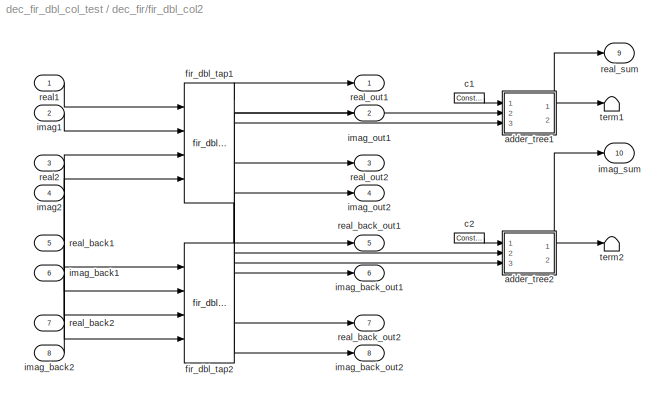
BLOCK [SubSystem] dec_fir/fir_dbl_col2
  AncestorBlock = casper_library_downconverter/fir_dbl_col
  FunctionWithSeparateData = off
  MaskCallbackString = |||||||
  MaskEnableString = on,on,on,on,on,on,on,on
  MaskHelp = eval('xlWeb(''http://casper.berkeley.edu/wiki/Fir_dbl_col'')')
  MaskHideContents = off
  MaskIconFrame = on
  MaskIconOpaque = on
  MaskIconRotate = none
  MaskIconUnits = autoscale
  MaskPromptString = Inputs|Coefficients|Add latency|Mult Latency|Coefficient bit width|Coefficient binary point|Implement first stage of adder trees on output as behavioural HDL|Adder implementation
  MaskSelfModifiable = on
  MaskStyleString = edit,edit,edit,edit,edit,edit,checkbox,popup(Behavioral|Fabric|DSP48)
  MaskTabNameString = ,,,,,,,
  MaskToolTipString = on,on,on,on,on,on,on,on
  MaskTunableValueString = on,on,on,on,on,on,on,on
  MaskType = fir_dbl_col
  MaskValueString = 2|[0.4         0.3]|2|3|18|17|off|DSP48
  MaskVarAliasString = ,,,,,,,
  MaskVariables = n_inputs=@1;coeff=@2;add_latency=@3;mult_latency=@4;coeff_bit_width=@5;coeff_bin_pt=@6;first_stage_hdl=&7;adder_imp=&8;
  MaskVisibilityString = on,on,on,on,on,on,on,on
  MinAlgLoopOccurrences = off
  Opaque = off
  Ports = [8, 10]
  PropExecContextOutsideSubsystem = off
  RTWSystemCode = Auto
  RequestExecContextInheritance = off
  UserData = DataTag6
  UserDataPersistent = on
BLOCK [SubSystem] dec_fir/fir_dbl_col2/adder_tree1
  AncestorBlock = casper_library_misc/adder_tree
  AttributesFormatString = latency 2
  FunctionWithSeparateData = off
  MaskCallbackString = |||
  MaskEnableString = on,on,on,on
  MaskHelp = eval('xlWeb(''http://casper.berkeley.edu/wiki/Adder_tree'')')
  MaskHideContents = off
  MaskIconFrame = on
  MaskIconOpaque = on
  MaskIconRotate = none
  MaskIconUnits = autoscale
  MaskInitialization = adder_tree_init(gcb, ...\n    'n_inputs', n_inputs, ...\n    'latency', latency, ...\n    'adder_imp', adder_imp, ...\n    'first_stage_hdl', first_stage_hdl);
  MaskPromptString = Number of Inputs|Add Latency|Adder implementation|Use behavioural HDL for first stage of adders
  MaskSelfModifiable = on
  MaskStyleString = edit,edit,popup(Behavioral|Fabric|DSP48),checkbox
  MaskTabNameString = ,,,
  MaskToolTipString = on,on,on,on
  MaskTunableValueString = on,on,on,on
  MaskType = adder_tree
  MaskValueString = 2|2|DSP48|off
  MaskVarAliasString = ,,,
  MaskVariables = n_inputs=@1;latency=@2;adder_imp=&3;first_stage_hdl=&4;
  MaskVisibilityString = on,on,on,on
  MinAlgLoopOccurrences = off
  Opaque = off
  Ports = [3, 2]
  PropExecContextOutsideSubsystem = off
  RTWSystemCode = Auto
  RequestExecContextInheritance = off
  UserData = DataTag7
  UserDataPersistent = on
BLOCK [Reference] dec_fir/fir_dbl_col2/adder_tree1/addr1  REF=xbsIndex_r4/AddSub
  Ports = [2, 1]
  SourceBlock = xbsIndex_r4/AddSub
  SourceType = Xilinx Adder/Subtracter Block
  arith_type = Unsigned
  bin_pt = 14
  block_type = addsub
  block_version = 11.4
  dbl_ovrd = off
  en = off
  has_advanced_control = 0
  hw_selection = DSP48
  latency = 2
  mode = Addition
  n_bits = 16
  overflow = Wrap
  pipelined = on
  precision = Full
  quantization = Truncate
  sg_icon_stat = 40,60,2,1,white,blue,0,4922a24f,right,
  sggui_pos = 22,98,419,344
  use_behavioral_HDL = off
  use_carryin = off
  use_carryout = off
  use_rpm = on
  xl_area = [0,0,0,0,0,0,0]
  xl_use_area = off
BLOCK [Inport] dec_fir/fir_dbl_col2/adder_tree1/din1
  IconDisplay = Port number
  Port = 2
BLOCK [Inport] dec_fir/fir_dbl_col2/adder_tree1/din2
  IconDisplay = Port number
  Port = 3
BLOCK [Outport] dec_fir/fir_dbl_col2/adder_tree1/dout
  IconDisplay = Port number
  Port = 2
BLOCK [Inport] dec_fir/fir_dbl_col2/adder_tree1/sync
  IconDisplay = Port number
BLOCK [Reference] dec_fir/fir_dbl_col2/adder_tree1/sync_delay  REF=xbsIndex_r4/Delay
  Ports = [1, 1]
  SourceBlock = xbsIndex_r4/Delay
  SourceType = Xilinx Delay Block
  block_type = delay
  block_version = 11.4
  dbl_ovrd = off
  en = off
  has_advanced_control = 0
  infoedit = Hardware notes: A delay line is a chain, each link of which is an SRL16 followed by a flip-flop.
  latency = 2
  reg_retiming = on
  sg_icon_stat = 30,30,1,1,white,blue,0,85ce9542,right,
  sggui_pos = 21,71,419,315
  xl_area = [0,0,0,0,0,0,0]
  xl_use_area = off
BLOCK [Outport] dec_fir/fir_dbl_col2/adder_tree1/sync_out
  IconDisplay = Port number
BLOCK [SubSystem] dec_fir/fir_dbl_col2/adder_tree2
  AncestorBlock = casper_library_misc/adder_tree
  AttributesFormatString = latency 2
  FunctionWithSeparateData = off
  MaskCallbackString = |||
  MaskEnableString = on,on,on,on
  MaskHelp = eval('xlWeb(''http://casper.berkeley.edu/wiki/Adder_tree'')')
  MaskHideContents = off
  MaskIconFrame = on
  MaskIconOpaque = on
  MaskIconRotate = none
  MaskIconUnits = autoscale
  MaskInitialization = adder_tree_init(gcb, ...\n    'n_inputs', n_inputs, ...\n    'latency', latency, ...\n    'adder_imp', adder_imp, ...\n    'first_stage_hdl', first_stage_hdl);
  MaskPromptString = Number of Inputs|Add Latency|Adder implementation|Use behavioural HDL for first stage of adders
  MaskSelfModifiable = on
  MaskStyleString = edit,edit,popup(Behavioral|Fabric|DSP48),checkbox
  MaskTabNameString = ,,,
  MaskToolTipString = on,on,on,on
  MaskTunableValueString = on,on,on,on
  MaskType = adder_tree
  MaskValueString = 2|2|DSP48|off
  MaskVarAliasString = ,,,
  MaskVariables = n_inputs=@1;latency=@2;adder_imp=&3;first_stage_hdl=&4;
  MaskVisibilityString = on,on,on,on
  MinAlgLoopOccurrences = off
  Opaque = off
  Ports = [3, 2]
  PropExecContextOutsideSubsystem = off
  RTWSystemCode = Auto
  RequestExecContextInheritance = off
  UserData = DataTag8
  UserDataPersistent = on
BLOCK [Reference] dec_fir/fir_dbl_col2/adder_tree2/addr1  REF=xbsIndex_r4/AddSub
  Ports = [2, 1]
  SourceBlock = xbsIndex_r4/AddSub
  SourceType = Xilinx Adder/Subtracter Block
  arith_type = Unsigned
  bin_pt = 14
  block_type = addsub
  block_version = 11.4
  dbl_ovrd = off
  en = off
  has_advanced_control = 0
  hw_selection = DSP48
  latency = 2
  mode = Addition
  n_bits = 16
  overflow = Wrap
  pipelined = on
  precision = Full
  quantization = Truncate
  sg_icon_stat = 40,60,2,1,white,blue,0,4922a24f,right,
  sggui_pos = 22,98,419,344
  use_behavioral_HDL = off
  use_carryin = off
  use_carryout = off
  use_rpm = on
  xl_area = [0,0,0,0,0,0,0]
  xl_use_area = off
BLOCK [Inport] dec_fir/fir_dbl_col2/adder_tree2/din1
  IconDisplay = Port number
  Port = 2
BLOCK [Inport] dec_fir/fir_dbl_col2/adder_tree2/din2
  IconDisplay = Port number
  Port = 3
BLOCK [Outport] dec_fir/fir_dbl_col2/adder_tree2/dout
  IconDisplay = Port number
  Port = 2
BLOCK [Inport] dec_fir/fir_dbl_col2/adder_tree2/sync
  IconDisplay = Port number
BLOCK [Reference] dec_fir/fir_dbl_col2/adder_tree2/sync_delay  REF=xbsIndex_r4/Delay
  Ports = [1, 1]
  SourceBlock = xbsIndex_r4/Delay
  SourceType = Xilinx Delay Block
  block_type = delay
  block_version = 11.4
  dbl_ovrd = off
  en = off
  has_advanced_control = 0
  infoedit = Hardware notes: A delay line is a chain, each link of which is an SRL16 followed by a flip-flop.
  latency = 2
  reg_retiming = on
  sg_icon_stat = 30,30,1,1,white,blue,0,85ce9542,right,
  sggui_pos = 21,71,419,315
  xl_area = [0,0,0,0,0,0,0]
  xl_use_area = off
BLOCK [Outport] dec_fir/fir_dbl_col2/adder_tree2/sync_out
  IconDisplay = Port number
BLOCK [Reference] dec_fir/fir_dbl_col2/c1  REF=xbsIndex_r4/Constant
  Ports = [0, 1]
  SourceBlock = xbsIndex_r4/Constant
  SourceType = Xilinx Constant Block Block
  arith_type = Signed (2's comp)
  bin_pt = 14
  block_type = constant
  block_version = 11.4
  carry = CIN
  const = 1
  dbl_ovrd = off
  dsp48_infoedit = The use of this block for DSP48 instructions is deprecated.  Please use the Opmode block.
  equ = P=C
  explicit_period = on
  has_advanced_control = 0
  inp1 = P
  inp2 = PCIN>>17
  n_bits = 16
  opr = +
  opselect = C
  period = 1
  sg_icon_stat = 30,10,0,1,white,blue,0,1c72b5be,right,
  sggui_pos = -1,-1,-1,-1
BLOCK [Reference] dec_fir/fir_dbl_col2/c2  REF=xbsIndex_r4/Constant
  Ports = [0, 1]
  SourceBlock = xbsIndex_r4/Constant
  SourceType = Xilinx Constant Block Block
  arith_type = Signed (2's comp)
  bin_pt = 14
  block_type = constant
  block_version = 11.4
  carry = CIN
  const = 1
  dbl_ovrd = off
  dsp48_infoedit = The use of this block for DSP48 instructions is deprecated.  Please use the Opmode block.
  equ = P=C
  explicit_period = on
  has_advanced_control = 0
  inp1 = P
  inp2 = PCIN>>17
  n_bits = 16
  opr = +
  opselect = C
  period = 1
  sg_icon_stat = 30,10,0,1,white,blue,0,1c72b5be,right,
  sggui_pos = -1,-1,-1,-1
BLOCK [Reference] dec_fir/fir_dbl_col2/fir_dbl_tap1  REF=casper_library_downconverter/fir_dbl_tap
  FunctionWithSeparateData = off
  Ports = [4, 6]
  RTWMemSecDataConstants = Inherit from model
  RTWMemSecDataInternal = Inherit from model
  RTWMemSecDataParameters = Inherit from model
  RTWMemSecFuncExecute = Inherit from model
  RTWMemSecFuncInitTerm = Inherit from model
  ShowPortLabels = FromPortIcon
  SourceBlock = casper_library_downconverter/fir_dbl_tap
  SourceType = fir_dbl_tap
  SystemSampleTime = -1
  add_latency = 2
  coeff_bin_pt = 17
  coeff_bit_width = 18
  factor = 0.4
  mult_latency = 3
BLOCK [Reference] dec_fir/fir_dbl_col2/fir_dbl_tap2  REF=casper_library_downconverter/fir_dbl_tap
  FunctionWithSeparateData = off
  Ports = [4, 6]
  RTWMemSecDataConstants = Inherit from model
  RTWMemSecDataInternal = Inherit from model
  RTWMemSecDataParameters = Inherit from model
  RTWMemSecFuncExecute = Inherit from model
  RTWMemSecFuncInitTerm = Inherit from model
  ShowPortLabels = FromPortIcon
  SourceBlock = casper_library_downconverter/fir_dbl_tap
  SourceType = fir_dbl_tap
  SystemSampleTime = -1
  add_latency = 2
  coeff_bin_pt = 17
  coeff_bit_width = 18
  factor = 0.3
  mult_latency = 3
BLOCK [Inport] dec_fir/fir_dbl_col2/imag1
  IconDisplay = Port number
  Port = 2
BLOCK [Inport] dec_fir/fir_dbl_col2/imag2
  IconDisplay = Port number
  Port = 4
BLOCK [Inport] dec_fir/fir_dbl_col2/imag_back1
  IconDisplay = Port number
  Port = 6
BLOCK [Inport] dec_fir/fir_dbl_col2/imag_back2
  IconDisplay = Port number
  Port = 8
BLOCK [Outport] dec_fir/fir_dbl_col2/imag_back_out1
  IconDisplay = Port number
  Port = 6
BLOCK [Outport] dec_fir/fir_dbl_col2/imag_back_out2
  IconDisplay = Port number
  Port = 8
BLOCK [Outport] dec_fir/fir_dbl_col2/imag_out1
  IconDisplay = Port number
  Port = 2
BLOCK [Outport] dec_fir/fir_dbl_col2/imag_out2
  IconDisplay = Port number
  Port = 4
BLOCK [Outport] dec_fir/fir_dbl_col2/imag_sum
  IconDisplay = Port number
  Port = 10
BLOCK [Inport] dec_fir/fir_dbl_col2/real1
  IconDisplay = Port number
BLOCK [Inport] dec_fir/fir_dbl_col2/real2
  IconDisplay = Port number
  Port = 3
BLOCK [Inport] dec_fir/fir_dbl_col2/real_back1
  IconDisplay = Port number
  Port = 5
BLOCK [Inport] dec_fir/fir_dbl_col2/real_back2
  IconDisplay = Port number
  Port = 7
BLOCK [Outport] dec_fir/fir_dbl_col2/real_back_out1
  IconDisplay = Port number
  Port = 5
BLOCK [Outport] dec_fir/fir_dbl_col2/real_back_out2
  IconDisplay = Port number
  Port = 7
BLOCK [Outport] dec_fir/fir_dbl_col2/real_out1
  IconDisplay = Port number
BLOCK [Outport] dec_fir/fir_dbl_col2/real_out2
  IconDisplay = Port number
  Port = 3
BLOCK [Outport] dec_fir/fir_dbl_col2/real_sum
  IconDisplay = Port number
  Port = 9
BLOCK [Terminator] dec_fir/fir_dbl_col2/term1
BLOCK [Terminator] dec_fir/fir_dbl_col2/term2
BLOCK [SubSystem] dec_fir/fir_dbl_col3
  AncestorBlock = casper_library_downconverter/fir_dbl_col
  FunctionWithSeparateData = off
  MaskCallbackString = |||||||
  MaskEnableString = on,on,on,on,on,on,on,on
  MaskHelp = eval('xlWeb(''http://casper.berkeley.edu/wiki/Fir_dbl_col'')')
  MaskHideContents = off
  MaskIconFrame = on
  MaskIconOpaque = on
  MaskIconRotate = none
  MaskIconUnits = autoscale
  MaskPromptString = Inputs|Coefficients|Add latency|Mult Latency|Coefficient bit width|Coefficient binary point|Implement first stage of adder trees on output as behavioural HDL|Adder implementation
  MaskSelfModifiable = on
  MaskStyleString = edit,edit,edit,edit,edit,edit,checkbox,popup(Behavioral|Fabric|DSP48)
  MaskTabNameString = ,,,,,,,
  MaskToolTipString = on,on,on,on,on,on,on,on
  MaskTunableValueString = on,on,on,on,on,on,on,on
  MaskType = fir_dbl_col
  MaskValueString = 2|[0.6         0.5]|2|3|18|17|off|DSP48
  MaskVarAliasString = ,,,,,,,
  MaskVariables = n_inputs=@1;coeff=@2;add_latency=@3;mult_latency=@4;coeff_bit_width=@5;coeff_bin_pt=@6;first_stage_hdl=&7;adder_imp=&8;
  MaskVisibilityString = on,on,on,on,on,on,on,on
  MinAlgLoopOccurrences = off
  Opaque = off
  Ports = [8, 10]
  PropExecContextOutsideSubsystem = off
  RTWSystemCode = Auto
  RequestExecContextInheritance = off
  UserData = DataTag9
  UserDataPersistent = on
BLOCK [SubSystem] dec_fir/fir_dbl_col3/adder_tree1
  AncestorBlock = casper_library_misc/adder_tree
  AttributesFormatString = latency 2
  FunctionWithSeparateData = off
  MaskCallbackString = |||
  MaskEnableString = on,on,on,on
  MaskHelp = eval('xlWeb(''http://casper.berkeley.edu/wiki/Adder_tree'')')
  MaskHideContents = off
  MaskIconFrame = on
  MaskIconOpaque = on
  MaskIconRotate = none
  MaskIconUnits = autoscale
  MaskInitialization = adder_tree_init(gcb, ...\n    'n_inputs', n_inputs, ...\n    'latency', latency, ...\n    'adder_imp', adder_imp, ...\n    'first_stage_hdl', first_stage_hdl);
  MaskPromptString = Number of Inputs|Add Latency|Adder implementation|Use behavioural HDL for first stage of adders
  MaskSelfModifiable = on
  MaskStyleString = edit,edit,popup(Behavioral|Fabric|DSP48),checkbox
  MaskTabNameString = ,,,
  MaskToolTipString = on,on,on,on
  MaskTunableValueString = on,on,on,on
  MaskType = adder_tree
  MaskValueString = 2|2|DSP48|off
  MaskVarAliasString = ,,,
  MaskVariables = n_inputs=@1;latency=@2;adder_imp=&3;first_stage_hdl=&4;
  MaskVisibilityString = on,on,on,on
  MinAlgLoopOccurrences = off
  Opaque = off
  Ports = [3, 2]
  PropExecContextOutsideSubsystem = off
  RTWSystemCode = Auto
  RequestExecContextInheritance = off
  UserData = DataTag10
  UserDataPersistent = on
BLOCK [Reference] dec_fir/fir_dbl_col3/adder_tree1/addr1  REF=xbsIndex_r4/AddSub
  Ports = [2, 1]
  SourceBlock = xbsIndex_r4/AddSub
  SourceType = Xilinx Adder/Subtracter Block
  arith_type = Unsigned
  bin_pt = 14
  block_type = addsub
  block_version = 11.4
  dbl_ovrd = off
  en = off
  has_advanced_control = 0
  hw_selection = DSP48
  latency = 2
  mode = Addition
  n_bits = 16
  overflow = Wrap
  pipelined = on
  precision = Full
  quantization = Truncate
  sg_icon_stat = 40,60,2,1,white,blue,0,4922a24f,right,
  sggui_pos = 22,98,419,344
  use_behavioral_HDL = off
  use_carryin = off
  use_carryout = off
  use_rpm = on
  xl_area = [0,0,0,0,0,0,0]
  xl_use_area = off
BLOCK [Inport] dec_fir/fir_dbl_col3/adder_tree1/din1
  IconDisplay = Port number
  Port = 2
BLOCK [Inport] dec_fir/fir_dbl_col3/adder_tree1/din2
  IconDisplay = Port number
  Port = 3
BLOCK [Outport] dec_fir/fir_dbl_col3/adder_tree1/dout
  IconDisplay = Port number
  Port = 2
BLOCK [Inport] dec_fir/fir_dbl_col3/adder_tree1/sync
  IconDisplay = Port number
BLOCK [Reference] dec_fir/fir_dbl_col3/adder_tree1/sync_delay  REF=xbsIndex_r4/Delay
  Ports = [1, 1]
  SourceBlock = xbsIndex_r4/Delay
  SourceType = Xilinx Delay Block
  block_type = delay
  block_version = 11.4
  dbl_ovrd = off
  en = off
  has_advanced_control = 0
  infoedit = Hardware notes: A delay line is a chain, each link of which is an SRL16 followed by a flip-flop.
  latency = 2
  reg_retiming = on
  sg_icon_stat = 30,30,1,1,white,blue,0,85ce9542,right,
  sggui_pos = 21,71,419,315
  xl_area = [0,0,0,0,0,0,0]
  xl_use_area = off
BLOCK [Outport] dec_fir/fir_dbl_col3/adder_tree1/sync_out
  IconDisplay = Port number
BLOCK [SubSystem] dec_fir/fir_dbl_col3/adder_tree2
  AncestorBlock = casper_library_misc/adder_tree
  AttributesFormatString = latency 2
  FunctionWithSeparateData = off
  MaskCallbackString = |||
  MaskEnableString = on,on,on,on
  MaskHelp = eval('xlWeb(''http://casper.berkeley.edu/wiki/Adder_tree'')')
  MaskHideContents = off
  MaskIconFrame = on
  MaskIconOpaque = on
  MaskIconRotate = none
  MaskIconUnits = autoscale
  MaskInitialization = adder_tree_init(gcb, ...\n    'n_inputs', n_inputs, ...\n    'latency', latency, ...\n    'adder_imp', adder_imp, ...\n    'first_stage_hdl', first_stage_hdl);
  MaskPromptString = Number of Inputs|Add Latency|Adder implementation|Use behavioural HDL for first stage of adders
  MaskSelfModifiable = on
  MaskStyleString = edit,edit,popup(Behavioral|Fabric|DSP48),checkbox
  MaskTabNameString = ,,,
  MaskToolTipString = on,on,on,on
  MaskTunableValueString = on,on,on,on
  MaskType = adder_tree
  MaskValueString = 2|2|DSP48|off
  MaskVarAliasString = ,,,
  MaskVariables = n_inputs=@1;latency=@2;adder_imp=&3;first_stage_hdl=&4;
  MaskVisibilityString = on,on,on,on
  MinAlgLoopOccurrences = off
  Opaque = off
  Ports = [3, 2]
  PropExecContextOutsideSubsystem = off
  RTWSystemCode = Auto
  RequestExecContextInheritance = off
  UserData = DataTag11
  UserDataPersistent = on
BLOCK [Reference] dec_fir/fir_dbl_col3/adder_tree2/addr1  REF=xbsIndex_r4/AddSub
  Ports = [2, 1]
  SourceBlock = xbsIndex_r4/AddSub
  SourceType = Xilinx Adder/Subtracter Block
  arith_type = Unsigned
  bin_pt = 14
  block_type = addsub
  block_version = 11.4
  dbl_ovrd = off
  en = off
  has_advanced_control = 0
  hw_selection = DSP48
  latency = 2
  mode = Addition
  n_bits = 16
  overflow = Wrap
  pipelined = on
  precision = Full
  quantization = Truncate
  sg_icon_stat = 40,60,2,1,white,blue,0,4922a24f,right,
  sggui_pos = 22,98,419,344
  use_behavioral_HDL = off
  use_carryin = off
  use_carryout = off
  use_rpm = on
  xl_area = [0,0,0,0,0,0,0]
  xl_use_area = off
BLOCK [Inport] dec_fir/fir_dbl_col3/adder_tree2/din1
  IconDisplay = Port number
  Port = 2
BLOCK [Inport] dec_fir/fir_dbl_col3/adder_tree2/din2
  IconDisplay = Port number
  Port = 3
BLOCK [Outport] dec_fir/fir_dbl_col3/adder_tree2/dout
  IconDisplay = Port number
  Port = 2
BLOCK [Inport] dec_fir/fir_dbl_col3/adder_tree2/sync
  IconDisplay = Port number
BLOCK [Reference] dec_fir/fir_dbl_col3/adder_tree2/sync_delay  REF=xbsIndex_r4/Delay
  Ports = [1, 1]
  SourceBlock = xbsIndex_r4/Delay
  SourceType = Xilinx Delay Block
  block_type = delay
  block_version = 11.4
  dbl_ovrd = off
  en = off
  has_advanced_control = 0
  infoedit = Hardware notes: A delay line is a chain, each link of which is an SRL16 followed by a flip-flop.
  latency = 2
  reg_retiming = on
  sg_icon_stat = 30,30,1,1,white,blue,0,85ce9542,right,
  sggui_pos = 21,71,419,315
  xl_area = [0,0,0,0,0,0,0]
  xl_use_area = off
BLOCK [Outport] dec_fir/fir_dbl_col3/adder_tree2/sync_out
  IconDisplay = Port number
BLOCK [Reference] dec_fir/fir_dbl_col3/c1  REF=xbsIndex_r4/Constant
  Ports = [0, 1]
  SourceBlock = xbsIndex_r4/Constant
  SourceType = Xilinx Constant Block Block
  arith_type = Signed (2's comp)
  bin_pt = 14
  block_type = constant
  block_version = 11.4
  carry = CIN
  const = 1
  dbl_ovrd = off
  dsp48_infoedit = The use of this block for DSP48 instructions is deprecated.  Please use the Opmode block.
  equ = P=C
  explicit_period = on
  has_advanced_control = 0
  inp1 = P
  inp2 = PCIN>>17
  n_bits = 16
  opr = +
  opselect = C
  period = 1
  sg_icon_stat = 30,10,0,1,white,blue,0,1c72b5be,right,
  sggui_pos = -1,-1,-1,-1
BLOCK [Reference] dec_fir/fir_dbl_col3/c2  REF=xbsIndex_r4/Constant
  Ports = [0, 1]
  SourceBlock = xbsIndex_r4/Constant
  SourceType = Xilinx Constant Block Block
  arith_type = Signed (2's comp)
  bin_pt = 14
  block_type = constant
  block_version = 11.4
  carry = CIN
  const = 1
  dbl_ovrd = off
  dsp48_infoedit = The use of this block for DSP48 instructions is deprecated.  Please use the Opmode block.
  equ = P=C
  explicit_period = on
  has_advanced_control = 0
  inp1 = P
  inp2 = PCIN>>17
  n_bits = 16
  opr = +
  opselect = C
  period = 1
  sg_icon_stat = 30,10,0,1,white,blue,0,1c72b5be,right,
  sggui_pos = -1,-1,-1,-1
BLOCK [Reference] dec_fir/fir_dbl_col3/fir_dbl_tap1  REF=casper_library_downconverter/fir_dbl_tap
  FunctionWithSeparateData = off
  Ports = [4, 6]
  RTWMemSecDataConstants = Inherit from model
  RTWMemSecDataInternal = Inherit from model
  RTWMemSecDataParameters = Inherit from model
  RTWMemSecFuncExecute = Inherit from model
  RTWMemSecFuncInitTerm = Inherit from model
  ShowPortLabels = FromPortIcon
  SourceBlock = casper_library_downconverter/fir_dbl_tap
  SourceType = fir_dbl_tap
  SystemSampleTime = -1
  add_latency = 2
  coeff_bin_pt = 17
  coeff_bit_width = 18
  factor = 0.6
  mult_latency = 3
BLOCK [Reference] dec_fir/fir_dbl_col3/fir_dbl_tap2  REF=casper_library_downconverter/fir_dbl_tap
  FunctionWithSeparateData = off
  Ports = [4, 6]
  RTWMemSecDataConstants = Inherit from model
  RTWMemSecDataInternal = Inherit from model
  RTWMemSecDataParameters = Inherit from model
  RTWMemSecFuncExecute = Inherit from model
  RTWMemSecFuncInitTerm = Inherit from model
  ShowPortLabels = FromPortIcon
  SourceBlock = casper_library_downconverter/fir_dbl_tap
  SourceType = fir_dbl_tap
  SystemSampleTime = -1
  add_latency = 2
  coeff_bin_pt = 17
  coeff_bit_width = 18
  factor = 0.5
  mult_latency = 3
BLOCK [Inport] dec_fir/fir_dbl_col3/imag1
  IconDisplay = Port number
  Port = 2
BLOCK [Inport] dec_fir/fir_dbl_col3/imag2
  IconDisplay = Port number
  Port = 4
BLOCK [Inport] dec_fir/fir_dbl_col3/imag_back1
  IconDisplay = Port number
  Port = 6
BLOCK [Inport] dec_fir/fir_dbl_col3/imag_back2
  IconDisplay = Port number
  Port = 8
BLOCK [Outport] dec_fir/fir_dbl_col3/imag_back_out1
  IconDisplay = Port number
  Port = 6
BLOCK [Outport] dec_fir/fir_dbl_col3/imag_back_out2
  IconDisplay = Port number
  Port = 8
BLOCK [Outport] dec_fir/fir_dbl_col3/imag_out1
  IconDisplay = Port number
  Port = 2
BLOCK [Outport] dec_fir/fir_dbl_col3/imag_out2
  IconDisplay = Port number
  Port = 4
BLOCK [Outport] dec_fir/fir_dbl_col3/imag_sum
  IconDisplay = Port number
  Port = 10
BLOCK [Inport] dec_fir/fir_dbl_col3/real1
  IconDisplay = Port number
BLOCK [Inport] dec_fir/fir_dbl_col3/real2
  IconDisplay = Port number
  Port = 3
BLOCK [Inport] dec_fir/fir_dbl_col3/real_back1
  IconDisplay = Port number
  Port = 5
BLOCK [Inport] dec_fir/fir_dbl_col3/real_back2
  IconDisplay = Port number
  Port = 7
BLOCK [Outport] dec_fir/fir_dbl_col3/real_back_out1
  IconDisplay = Port number
  Port = 5
BLOCK [Outport] dec_fir/fir_dbl_col3/real_back_out2
  IconDisplay = Port number
  Port = 7
BLOCK [Outport] dec_fir/fir_dbl_col3/real_out1
  IconDisplay = Port number
BLOCK [Outport] dec_fir/fir_dbl_col3/real_out2
  IconDisplay = Port number
  Port = 3
BLOCK [Outport] dec_fir/fir_dbl_col3/real_sum
  IconDisplay = Port number
  Port = 9
BLOCK [Terminator] dec_fir/fir_dbl_col3/term1
BLOCK [Terminator] dec_fir/fir_dbl_col3/term2
BLOCK [SubSystem] dec_fir/fir_dbl_col4
  AncestorBlock = casper_library_downconverter/fir_dbl_col
  FunctionWithSeparateData = off
  MaskCallbackString = |||||||
  MaskEnableString = on,on,on,on,on,on,on,on
  MaskHelp = eval('xlWeb(''http://casper.berkeley.edu/wiki/Fir_dbl_col'')')
  MaskHideContents = off
  MaskIconFrame = on
  MaskIconOpaque = on
  MaskIconRotate = none
  MaskIconUnits = autoscale
  MaskPromptString = Inputs|Coefficients|Add latency|Mult Latency|Coefficient bit width|Coefficient binary point|Implement first stage of adder trees on output as behavioural HDL|Adder implementation
  MaskSelfModifiable = on
  MaskStyleString = edit,edit,edit,edit,edit,edit,checkbox,popup(Behavioral|Fabric|DSP48)
  MaskTabNameString = ,,,,,,,
  MaskToolTipString = on,on,on,on,on,on,on,on
  MaskTunableValueString = on,on,on,on,on,on,on,on
  MaskType = fir_dbl_col
  MaskValueString = 2|[0.8         0.7]|2|3|18|17|off|DSP48
  MaskVarAliasString = ,,,,,,,
  MaskVariables = n_inputs=@1;coeff=@2;add_latency=@3;mult_latency=@4;coeff_bit_width=@5;coeff_bin_pt=@6;first_stage_hdl=&7;adder_imp=&8;
  MaskVisibilityString = on,on,on,on,on,on,on,on
  MinAlgLoopOccurrences = off
  Opaque = off
  Ports = [8, 10]
  PropExecContextOutsideSubsystem = off
  RTWSystemCode = Auto
  RequestExecContextInheritance = off
  UserData = DataTag12
  UserDataPersistent = on
BLOCK [SubSystem] dec_fir/fir_dbl_col4/adder_tree1
  AncestorBlock = casper_library_misc/adder_tree
  AttributesFormatString = latency 2
  FunctionWithSeparateData = off
  MaskCallbackString = |||
  MaskEnableString = on,on,on,on
  MaskHelp = eval('xlWeb(''http://casper.berkeley.edu/wiki/Adder_tree'')')
  MaskHideContents = off
  MaskIconFrame = on
  MaskIconOpaque = on
  MaskIconRotate = none
  MaskIconUnits = autoscale
  MaskInitialization = adder_tree_init(gcb, ...\n    'n_inputs', n_inputs, ...\n    'latency', latency, ...\n    'adder_imp', adder_imp, ...\n    'first_stage_hdl', first_stage_hdl);
  MaskPromptString = Number of Inputs|Add Latency|Adder implementation|Use behavioural HDL for first stage of adders
  MaskSelfModifiable = on
  MaskStyleString = edit,edit,popup(Behavioral|Fabric|DSP48),checkbox
  MaskTabNameString = ,,,
  MaskToolTipString = on,on,on,on
  MaskTunableValueString = on,on,on,on
  MaskType = adder_tree
  MaskValueString = 2|2|DSP48|off
  MaskVarAliasString = ,,,
  MaskVariables = n_inputs=@1;latency=@2;adder_imp=&3;first_stage_hdl=&4;
  MaskVisibilityString = on,on,on,on
  MinAlgLoopOccurrences = off
  Opaque = off
  Ports = [3, 2]
  PropExecContextOutsideSubsystem = off
  RTWSystemCode = Auto
  RequestExecContextInheritance = off
  UserData = DataTag13
  UserDataPersistent = on
BLOCK [Reference] dec_fir/fir_dbl_col4/adder_tree1/addr1  REF=xbsIndex_r4/AddSub
  Ports = [2, 1]
  SourceBlock = xbsIndex_r4/AddSub
  SourceType = Xilinx Adder/Subtracter Block
  arith_type = Unsigned
  bin_pt = 14
  block_type = addsub
  block_version = 11.4
  dbl_ovrd = off
  en = off
  has_advanced_control = 0
  hw_selection = DSP48
  latency = 2
  mode = Addition
  n_bits = 16
  overflow = Wrap
  pipelined = on
  precision = Full
  quantization = Truncate
  sg_icon_stat = 40,60,2,1,white,blue,0,4922a24f,right,
  sggui_pos = 22,98,419,344
  use_behavioral_HDL = off
  use_carryin = off
  use_carryout = off
  use_rpm = on
  xl_area = [0,0,0,0,0,0,0]
  xl_use_area = off
BLOCK [Inport] dec_fir/fir_dbl_col4/adder_tree1/din1
  IconDisplay = Port number
  Port = 2
BLOCK [Inport] dec_fir/fir_dbl_col4/adder_tree1/din2
  IconDisplay = Port number
  Port = 3
BLOCK [Outport] dec_fir/fir_dbl_col4/adder_tree1/dout
  IconDisplay = Port number
  Port = 2
BLOCK [Inport] dec_fir/fir_dbl_col4/adder_tree1/sync
  IconDisplay = Port number
BLOCK [Reference] dec_fir/fir_dbl_col4/adder_tree1/sync_delay  REF=xbsIndex_r4/Delay
  Ports = [1, 1]
  SourceBlock = xbsIndex_r4/Delay
  SourceType = Xilinx Delay Block
  block_type = delay
  block_version = 11.4
  dbl_ovrd = off
  en = off
  has_advanced_control = 0
  infoedit = Hardware notes: A delay line is a chain, each link of which is an SRL16 followed by a flip-flop.
  latency = 2
  reg_retiming = on
  sg_icon_stat = 30,30,1,1,white,blue,0,85ce9542,right,
  sggui_pos = 21,71,419,315
  xl_area = [0,0,0,0,0,0,0]
  xl_use_area = off
BLOCK [Outport] dec_fir/fir_dbl_col4/adder_tree1/sync_out
  IconDisplay = Port number
BLOCK [SubSystem] dec_fir/fir_dbl_col4/adder_tree2
  AncestorBlock = casper_library_misc/adder_tree
  AttributesFormatString = latency 2
  FunctionWithSeparateData = off
  MaskCallbackString = |||
  MaskEnableString = on,on,on,on
  MaskHelp = eval('xlWeb(''http://casper.berkeley.edu/wiki/Adder_tree'')')
  MaskHideContents = off
  MaskIconFrame = on
  MaskIconOpaque = on
  MaskIconRotate = none
  MaskIconUnits = autoscale
  MaskInitialization = adder_tree_init(gcb, ...\n    'n_inputs', n_inputs, ...\n    'latency', latency, ...\n    'adder_imp', adder_imp, ...\n    'first_stage_hdl', first_stage_hdl);
  MaskPromptString = Number of Inputs|Add Latency|Adder implementation|Use behavioural HDL for first stage of adders
  MaskSelfModifiable = on
  MaskStyleString = edit,edit,popup(Behavioral|Fabric|DSP48),checkbox
  MaskTabNameString = ,,,
  MaskToolTipString = on,on,on,on
  MaskTunableValueString = on,on,on,on
  MaskType = adder_tree
  MaskValueString = 2|2|DSP48|off
  MaskVarAliasString = ,,,
  MaskVariables = n_inputs=@1;latency=@2;adder_imp=&3;first_stage_hdl=&4;
  MaskVisibilityString = on,on,on,on
  MinAlgLoopOccurrences = off
  Opaque = off
  Ports = [3, 2]
  PropExecContextOutsideSubsystem = off
  RTWSystemCode = Auto
  RequestExecContextInheritance = off
  UserData = DataTag14
  UserDataPersistent = on
BLOCK [Reference] dec_fir/fir_dbl_col4/adder_tree2/addr1  REF=xbsIndex_r4/AddSub
  Ports = [2, 1]
  SourceBlock = xbsIndex_r4/AddSub
  SourceType = Xilinx Adder/Subtracter Block
  arith_type = Unsigned
  bin_pt = 14
  block_type = addsub
  block_version = 11.4
  dbl_ovrd = off
  en = off
  has_advanced_control = 0
  hw_selection = DSP48
  latency = 2
  mode = Addition
  n_bits = 16
  overflow = Wrap
  pipelined = on
  precision = Full
  quantization = Truncate
  sg_icon_stat = 40,60,2,1,white,blue,0,4922a24f,right,
  sggui_pos = 22,98,419,344
  use_behavioral_HDL = off
  use_carryin = off
  use_carryout = off
  use_rpm = on
  xl_area = [0,0,0,0,0,0,0]
  xl_use_area = off
BLOCK [Inport] dec_fir/fir_dbl_col4/adder_tree2/din1
  IconDisplay = Port number
  Port = 2
BLOCK [Inport] dec_fir/fir_dbl_col4/adder_tree2/din2
  IconDisplay = Port number
  Port = 3
BLOCK [Outport] dec_fir/fir_dbl_col4/adder_tree2/dout
  IconDisplay = Port number
  Port = 2
BLOCK [Inport] dec_fir/fir_dbl_col4/adder_tree2/sync
  IconDisplay = Port number
BLOCK [Reference] dec_fir/fir_dbl_col4/adder_tree2/sync_delay  REF=xbsIndex_r4/Delay
  Ports = [1, 1]
  SourceBlock = xbsIndex_r4/Delay
  SourceType = Xilinx Delay Block
  block_type = delay
  block_version = 11.4
  dbl_ovrd = off
  en = off
  has_advanced_control = 0
  infoedit = Hardware notes: A delay line is a chain, each link of which is an SRL16 followed by a flip-flop.
  latency = 2
  reg_retiming = on
  sg_icon_stat = 30,30,1,1,white,blue,0,85ce9542,right,
  sggui_pos = 21,71,419,315
  xl_area = [0,0,0,0,0,0,0]
  xl_use_area = off
BLOCK [Outport] dec_fir/fir_dbl_col4/adder_tree2/sync_out
  IconDisplay = Port number
BLOCK [Reference] dec_fir/fir_dbl_col4/c1  REF=xbsIndex_r4/Constant
  Ports = [0, 1]
  SourceBlock = xbsIndex_r4/Constant
  SourceType = Xilinx Constant Block Block
  arith_type = Signed (2's comp)
  bin_pt = 14
  block_type = constant
  block_version = 11.4
  carry = CIN
  const = 1
  dbl_ovrd = off
  dsp48_infoedit = The use of this block for DSP48 instructions is deprecated.  Please use the Opmode block.
  equ = P=C
  explicit_period = on
  has_advanced_control = 0
  inp1 = P
  inp2 = PCIN>>17
  n_bits = 16
  opr = +
  opselect = C
  period = 1
  sg_icon_stat = 30,10,0,1,white,blue,0,1c72b5be,right,
  sggui_pos = -1,-1,-1,-1
BLOCK [Reference] dec_fir/fir_dbl_col4/c2  REF=xbsIndex_r4/Constant
  Ports = [0, 1]
  SourceBlock = xbsIndex_r4/Constant
  SourceType = Xilinx Constant Block Block
  arith_type = Signed (2's comp)
  bin_pt = 14
  block_type = constant
  block_version = 11.4
  carry = CIN
  const = 1
  dbl_ovrd = off
  dsp48_infoedit = The use of this block for DSP48 instructions is deprecated.  Please use the Opmode block.
  equ = P=C
  explicit_period = on
  has_advanced_control = 0
  inp1 = P
  inp2 = PCIN>>17
  n_bits = 16
  opr = +
  opselect = C
  period = 1
  sg_icon_stat = 30,10,0,1,white,blue,0,1c72b5be,right,
  sggui_pos = -1,-1,-1,-1
BLOCK [Reference] dec_fir/fir_dbl_col4/fir_dbl_tap1  REF=casper_library_downconverter/fir_dbl_tap
  FunctionWithSeparateData = off
  Ports = [4, 6]
  RTWMemSecDataConstants = Inherit from model
  RTWMemSecDataInternal = Inherit from model
  RTWMemSecDataParameters = Inherit from model
  RTWMemSecFuncExecute = Inherit from model
  RTWMemSecFuncInitTerm = Inherit from model
  ShowPortLabels = FromPortIcon
  SourceBlock = casper_library_downconverter/fir_dbl_tap
  SourceType = fir_dbl_tap
  SystemSampleTime = -1
  add_latency = 2
  coeff_bin_pt = 17
  coeff_bit_width = 18
  factor = 0.8
  mult_latency = 3
BLOCK [Reference] dec_fir/fir_dbl_col4/fir_dbl_tap2  REF=casper_library_downconverter/fir_dbl_tap
  FunctionWithSeparateData = off
  Ports = [4, 6]
  RTWMemSecDataConstants = Inherit from model
  RTWMemSecDataInternal = Inherit from model
  RTWMemSecDataParameters = Inherit from model
  RTWMemSecFuncExecute = Inherit from model
  RTWMemSecFuncInitTerm = Inherit from model
  ShowPortLabels = FromPortIcon
  SourceBlock = casper_library_downconverter/fir_dbl_tap
  SourceType = fir_dbl_tap
  SystemSampleTime = -1
  add_latency = 2
  coeff_bin_pt = 17
  coeff_bit_width = 18
  factor = 0.7
  mult_latency = 3
BLOCK [Inport] dec_fir/fir_dbl_col4/imag1
  IconDisplay = Port number
  Port = 2
BLOCK [Inport] dec_fir/fir_dbl_col4/imag2
  IconDisplay = Port number
  Port = 4
BLOCK [Inport] dec_fir/fir_dbl_col4/imag_back1
  IconDisplay = Port number
  Port = 6
BLOCK [Inport] dec_fir/fir_dbl_col4/imag_back2
  IconDisplay = Port number
  Port = 8
BLOCK [Outport] dec_fir/fir_dbl_col4/imag_back_out1
  IconDisplay = Port number
  Port = 6
BLOCK [Outport] dec_fir/fir_dbl_col4/imag_back_out2
  IconDisplay = Port number
  Port = 8
BLOCK [Outport] dec_fir/fir_dbl_col4/imag_out1
  IconDisplay = Port number
  Port = 2
BLOCK [Outport] dec_fir/fir_dbl_col4/imag_out2
  IconDisplay = Port number
  Port = 4
BLOCK [Outport] dec_fir/fir_dbl_col4/imag_sum
  IconDisplay = Port number
  Port = 10
BLOCK [Inport] dec_fir/fir_dbl_col4/real1
  IconDisplay = Port number
BLOCK [Inport] dec_fir/fir_dbl_col4/real2
  IconDisplay = Port number
  Port = 3
BLOCK [Inport] dec_fir/fir_dbl_col4/real_back1
  IconDisplay = Port number
  Port = 5
BLOCK [Inport] dec_fir/fir_dbl_col4/real_back2
  IconDisplay = Port number
  Port = 7
BLOCK [Outport] dec_fir/fir_dbl_col4/real_back_out1
  IconDisplay = Port number
  Port = 5
BLOCK [Outport] dec_fir/fir_dbl_col4/real_back_out2
  IconDisplay = Port number
  Port = 7
BLOCK [Outport] dec_fir/fir_dbl_col4/real_out1
  IconDisplay = Port number
BLOCK [Outport] dec_fir/fir_dbl_col4/real_out2
  IconDisplay = Port number
  Port = 3
BLOCK [Outport] dec_fir/fir_dbl_col4/real_sum
  IconDisplay = Port number
  Port = 9
BLOCK [Terminator] dec_fir/fir_dbl_col4/term1
BLOCK [Terminator] dec_fir/fir_dbl_col4/term2
BLOCK [Inport] dec_fir/imag1
  IconDisplay = Port number
  Port = 3
BLOCK [Inport] dec_fir/imag2
  IconDisplay = Port number
  Port = 5
BLOCK [SubSystem] dec_fir/imag_sum
  AncestorBlock = casper_library_misc/adder_tree
  AttributesFormatString = latency 4
  FunctionWithSeparateData = off
  MaskCallbackString = |||
  MaskEnableString = on,on,on,on
  MaskHelp = eval('xlWeb(''http://casper.berkeley.edu/wiki/Adder_tree'')')
  MaskHideContents = off
  MaskIconFrame = on
  MaskIconOpaque = on
  MaskIconRotate = none
  MaskIconUnits = autoscale
  MaskInitialization = adder_tree_init(gcb, ...\n    'n_inputs', n_inputs, ...\n    'latency', latency, ...\n    'adder_imp', adder_imp, ...\n    'first_stage_hdl', first_stage_hdl);
  MaskPromptString = Number of Inputs|Add Latency|Adder implementation|Use behavioural HDL for first stage of adders
  MaskSelfModifiable = on
  MaskStyleString = edit,edit,popup(Behavioral|Fabric|DSP48),checkbox
  MaskTabNameString = ,,,
  MaskToolTipString = on,on,on,on
  MaskTunableValueString = on,on,on,on
  MaskType = adder_tree
  MaskValueString = 4|2|DSP48|off
  MaskVarAliasString = ,,,
  MaskVariables = n_inputs=@1;latency=@2;adder_imp=&3;first_stage_hdl=&4;
  MaskVisibilityString = on,on,on,on
  MinAlgLoopOccurrences = off
  Opaque = off
  Ports = [5, 2]
  PropExecContextOutsideSubsystem = off
  RTWSystemCode = Auto
  RequestExecContextInheritance = off
  UserData = DataTag15
  UserDataPersistent = on
BLOCK [Reference] dec_fir/imag_sum/addr1  REF=xbsIndex_r4/AddSub
  Ports = [2, 1]
  SourceBlock = xbsIndex_r4/AddSub
  SourceType = Xilinx Adder/Subtracter Block
  arith_type = Unsigned
  bin_pt = 14
  block_type = addsub
  block_version = 11.4
  dbl_ovrd = off
  en = off
  has_advanced_control = 0
  hw_selection = DSP48
  latency = 2
  mode = Addition
  n_bits = 16
  overflow = Wrap
  pipelined = on
  precision = Full
  quantization = Truncate
  sg_icon_stat = 40,60,2,1,white,blue,0,4922a24f,right,
  sggui_pos = -1,-1,-1,-1
  use_behavioral_HDL = off
  use_carryin = off
  use_carryout = off
  use_rpm = on
  xl_area = [0,0,0,0,0,0,0]
  xl_use_area = off
BLOCK [Reference] dec_fir/imag_sum/addr2  REF=xbsIndex_r4/AddSub
  Ports = [2, 1]
  SourceBlock = xbsIndex_r4/AddSub
  SourceType = Xilinx Adder/Subtracter Block
  arith_type = Unsigned
  bin_pt = 14
  block_type = addsub
  block_version = 11.4
  dbl_ovrd = off
  en = off
  has_advanced_control = 0
  hw_selection = DSP48
  latency = 2
  mode = Addition
  n_bits = 16
  overflow = Wrap
  pipelined = on
  precision = Full
  quantization = Truncate
  sg_icon_stat = 40,60,2,1,white,blue,0,4922a24f,right,
  sggui_pos = -1,-1,-1,-1
  use_behavioral_HDL = off
  use_carryin = off
  use_carryout = off
  use_rpm = on
  xl_area = [0,0,0,0,0,0,0]
  xl_use_area = off
BLOCK [Reference] dec_fir/imag_sum/addr3  REF=xbsIndex_r4/AddSub
  Ports = [2, 1]
  SourceBlock = xbsIndex_r4/AddSub
  SourceType = Xilinx Adder/Subtracter Block
  arith_type = Unsigned
  bin_pt = 14
  block_type = addsub
  block_version = 11.4
  dbl_ovrd = off
  en = off
  has_advanced_control = 0
  hw_selection = DSP48
  latency = 2
  mode = Addition
  n_bits = 16
  overflow = Wrap
  pipelined = on
  precision = Full
  quantization = Truncate
  sg_icon_stat = 40,60,2,1,white,blue,0,4922a24f,right,
  sggui_pos = -1,-1,-1,-1
  use_behavioral_HDL = off
  use_carryin = off
  use_carryout = off
  use_rpm = on
  xl_area = [0,0,0,0,0,0,0]
  xl_use_area = off
BLOCK [Inport] dec_fir/imag_sum/din1
  IconDisplay = Port number
  Port = 2
BLOCK [Inport] dec_fir/imag_sum/din2
  IconDisplay = Port number
  Port = 3
BLOCK [Inport] dec_fir/imag_sum/din3
  IconDisplay = Port number
  Port = 4
BLOCK [Inport] dec_fir/imag_sum/din4
  IconDisplay = Port number
  Port = 5
BLOCK [Outport] dec_fir/imag_sum/dout
  IconDisplay = Port number
  Port = 2
BLOCK [Inport] dec_fir/imag_sum/sync
  IconDisplay = Port number
BLOCK [Reference] dec_fir/imag_sum/sync_delay  REF=xbsIndex_r4/Delay
  Ports = [1, 1]
  SourceBlock = xbsIndex_r4/Delay
  SourceType = Xilinx Delay Block
  block_type = delay
  block_version = 11.4
  dbl_ovrd = off
  en = off
  has_advanced_control = 0
  infoedit = Hardware notes: A delay line is a chain, each link of which is an SRL16 followed by a flip-flop.
  latency = 4
  reg_retiming = on
  sg_icon_stat = 30,30,1,1,white,blue,0,d390c2d8,right,
  sggui_pos = 21,71,419,315
  xl_area = [0,0,0,0,0,0,0]
  xl_use_area = off
BLOCK [Outport] dec_fir/imag_sum/sync_out
  IconDisplay = Port number
BLOCK [Inport] dec_fir/real1
  IconDisplay = Port number
  Port = 2
BLOCK [Inport] dec_fir/real2
  IconDisplay = Port number
  Port = 4
BLOCK [SubSystem] dec_fir/real_sum
  AncestorBlock = casper_library_misc/adder_tree
  AttributesFormatString = latency 4
  FunctionWithSeparateData = off
  MaskCallbackString = |||
  MaskEnableString = on,on,on,on
  MaskHelp = eval('xlWeb(''http://casper.berkeley.edu/wiki/Adder_tree'')')
  MaskHideContents = off
  MaskIconFrame = on
  MaskIconOpaque = on
  MaskIconRotate = none
  MaskIconUnits = autoscale
  MaskInitialization = adder_tree_init(gcb, ...\n    'n_inputs', n_inputs, ...\n    'latency', latency, ...\n    'adder_imp', adder_imp, ...\n    'first_stage_hdl', first_stage_hdl);
  MaskPromptString = Number of Inputs|Add Latency|Adder implementation|Use behavioural HDL for first stage of adders
  MaskSelfModifiable = on
  MaskStyleString = edit,edit,popup(Behavioral|Fabric|DSP48),checkbox
  MaskTabNameString = ,,,
  MaskToolTipString = on,on,on,on
  MaskTunableValueString = on,on,on,on
  MaskType = adder_tree
  MaskValueString = 4|2|DSP48|off
  MaskVarAliasString = ,,,
  MaskVariables = n_inputs=@1;latency=@2;adder_imp=&3;first_stage_hdl=&4;
  MaskVisibilityString = on,on,on,on
  MinAlgLoopOccurrences = off
  Opaque = off
  Ports = [5, 2]
  PropExecContextOutsideSubsystem = off
  RTWSystemCode = Auto
  RequestExecContextInheritance = off
  UserData = DataTag16
  UserDataPersistent = on
BLOCK [Reference] dec_fir/real_sum/addr1  REF=xbsIndex_r4/AddSub
  Ports = [2, 1]
  SourceBlock = xbsIndex_r4/AddSub
  SourceType = Xilinx Adder/Subtracter Block
  arith_type = Unsigned
  bin_pt = 14
  block_type = addsub
  block_version = 11.4
  dbl_ovrd = off
  en = off
  has_advanced_control = 0
  hw_selection = DSP48
  latency = 2
  mode = Addition
  n_bits = 16
  overflow = Wrap
  pipelined = on
  precision = Full
  quantization = Truncate
  sg_icon_stat = 40,60,2,1,white,blue,0,4922a24f,right,
  sggui_pos = -1,-1,-1,-1
  use_behavioral_HDL = off
  use_carryin = off
  use_carryout = off
  use_rpm = on
  xl_area = [0,0,0,0,0,0,0]
  xl_use_area = off
BLOCK [Reference] dec_fir/real_sum/addr2  REF=xbsIndex_r4/AddSub
  Ports = [2, 1]
  SourceBlock = xbsIndex_r4/AddSub
  SourceType = Xilinx Adder/Subtracter Block
  arith_type = Unsigned
  bin_pt = 14
  block_type = addsub
  block_version = 11.4
  dbl_ovrd = off
  en = off
  has_advanced_control = 0
  hw_selection = DSP48
  latency = 2
  mode = Addition
  n_bits = 16
  overflow = Wrap
  pipelined = on
  precision = Full
  quantization = Truncate
  sg_icon_stat = 40,60,2,1,white,blue,0,4922a24f,right,
  sggui_pos = -1,-1,-1,-1
  use_behavioral_HDL = off
  use_carryin = off
  use_carryout = off
  use_rpm = on
  xl_area = [0,0,0,0,0,0,0]
  xl_use_area = off
BLOCK [Reference] dec_fir/real_sum/addr3  REF=xbsIndex_r4/AddSub
  Ports = [2, 1]
  SourceBlock = xbsIndex_r4/AddSub
  SourceType = Xilinx Adder/Subtracter Block
  arith_type = Unsigned
  bin_pt = 14
  block_type = addsub
  block_version = 11.4
  dbl_ovrd = off
  en = off
  has_advanced_control = 0
  hw_selection = DSP48
  latency = 2
  mode = Addition
  n_bits = 16
  overflow = Wrap
  pipelined = on
  precision = Full
  quantization = Truncate
  sg_icon_stat = 40,60,2,1,white,blue,0,4922a24f,right,
  sggui_pos = -1,-1,-1,-1
  use_behavioral_HDL = off
  use_carryin = off
  use_carryout = off
  use_rpm = on
  xl_area = [0,0,0,0,0,0,0]
  xl_use_area = off
BLOCK [Inport] dec_fir/real_sum/din1
  IconDisplay = Port number
  Port = 2
BLOCK [Inport] dec_fir/real_sum/din2
  IconDisplay = Port number
  Port = 3
BLOCK [Inport] dec_fir/real_sum/din3
  IconDisplay = Port number
  Port = 4
BLOCK [Inport] dec_fir/real_sum/din4
  IconDisplay = Port number
  Port = 5
BLOCK [Outport] dec_fir/real_sum/dout
  IconDisplay = Port number
  Port = 2
BLOCK [Inport] dec_fir/real_sum/sync
  IconDisplay = Port number
BLOCK [Reference] dec_fir/real_sum/sync_delay  REF=xbsIndex_r4/Delay
  Ports = [1, 1]
  SourceBlock = xbsIndex_r4/Delay
  SourceType = Xilinx Delay Block
  block_type = delay
  block_version = 11.4
  dbl_ovrd = off
  en = off
  has_advanced_control = 0
  infoedit = Hardware notes: A delay line is a chain, each link of which is an SRL16 followed by a flip-flop.
  latency = 4
  reg_retiming = on
  sg_icon_stat = 30,30,1,1,white,blue,0,d390c2d8,right,
  sggui_pos = 21,71,419,315
  xl_area = [0,0,0,0,0,0,0]
  xl_use_area = off
BLOCK [Outport] dec_fir/real_sum/sync_out
  IconDisplay = Port number
BLOCK [Reference] dec_fir/ri_to_c  REF=casper_library_misc/ri_to_c  (lib defined in mdl_357510c33b49, mdl_57b5f564ae26, +4 more)
  FunctionWithSeparateData = off
  Ports = [2, 1]
  RTWMemSecDataConstants = Inherit from model
  RTWMemSecDataInternal = Inherit from model
  RTWMemSecDataParameters = Inherit from model
  RTWMemSecFuncExecute = Inherit from model
  RTWMemSecFuncInitTerm = Inherit from model
  ShowPortLabels = FromPortIcon
  SourceBlock = casper_library_misc/ri_to_c
  SourceType = ri_to_c
  SystemSampleTime = -1
  UserData = DataTag17
  UserDataPersistent = on
BLOCK [Reference] dec_fir/shift1  REF=xbsIndex_r4/Shift
  Ports = [1, 1]
  SourceBlock = xbsIndex_r4/Shift
  SourceType = Xilinx Binary Shift Operator Block
  arith_type = Signed  (2's comp)
  bin_pt = 14
  block_type = shift
  block_version = 11.4
  dbl_ovrd = off
  en = off
  has_advanced_control = 0
  infoedit = Hardware notes: In hardware this block costs nothing if full output precision is used.
  latency = 0
  n_bits = 16
  overflow = Wrap
  precision = Full
  quantization = Truncate
  sg_icon_stat = 30,16,1,1,white,blue,0,2518b6df,right,
  sg_mask_display = fprintf('','COMMENT: begin icon graphics');\npatch([0 1 1 0 ],[0 0 1 1 ],[0.77 0.82 0.91]);\npatch([0.366667 0.266667 0.4 0.266667 0.366667 0.5 0.533333 0.566667 0.733333 0.6 0.5 0.433333 0.566667 0.433333 0.5 0.6 0.733333 0.566667 0.533333 0.5 0.366667 ],[0.125 0.3125 0.5625 0.8125 1 1 0.9375 1 1 0.75 0.9375 0.8125 0.5625 0.3125 0.1875 0.375 0.125 0.125 0.1875 0.125 0.125 ],[0.98 0.96 0.92]);\npl...<+232ch>
  sggui_pos = -1,-1,-1,-1
  shift_bits = 1
  shift_dir = Left
  xl_area = [0,0,0,0,0,0,0]
  xl_use_area = off
BLOCK [Reference] dec_fir/shift2  REF=xbsIndex_r4/Shift
  Ports = [1, 1]
  SourceBlock = xbsIndex_r4/Shift
  SourceType = Xilinx Binary Shift Operator Block
  arith_type = Signed  (2's comp)
  bin_pt = 14
  block_type = shift
  block_version = 11.4
  dbl_ovrd = off
  en = off
  has_advanced_control = 0
  infoedit = Hardware notes: In hardware this block costs nothing if full output precision is used.
  latency = 0
  n_bits = 16
  overflow = Wrap
  precision = Full
  quantization = Truncate
  sg_icon_stat = 30,16,1,1,white,blue,0,2518b6df,right,
  sg_mask_display = fprintf('','COMMENT: begin icon graphics');\npatch([0 1 1 0 ],[0 0 1 1 ],[0.77 0.82 0.91]);\npatch([0.366667 0.266667 0.4 0.266667 0.366667 0.5 0.533333 0.566667 0.733333 0.6 0.5 0.433333 0.566667 0.433333 0.5 0.6 0.733333 0.566667 0.533333 0.5 0.366667 ],[0.125 0.3125 0.5625 0.8125 1 1 0.9375 1 1 0.75 0.9375 0.8125 0.5625 0.3125 0.1875 0.375 0.125 0.125 0.1875 0.125 0.125 ],[0.98 0.96 0.92]);\npl...<+232ch>
  sggui_pos = -1,-1,-1,-1
  shift_bits = 1
  shift_dir = Left
  xl_area = [0,0,0,0,0,0,0]
  xl_use_area = off
BLOCK [Inport] dec_fir/sync_in
  IconDisplay = Port number
BLOCK [Outport] dec_fir/sync_out
  IconDisplay = Port number
NET Constant:1 -> dec_fir:4, dec_fir:5
LINE Convert:1 -> Scale:1
NET Delay1:1 -> Gateway Out4:1, dec_fir:3
NET Delay:1 -> Delay1:1, Gateway Out3:1, dec_fir:2
LINE Demux:1 -> Scope:7
LINE Demux:2 -> Scope:8
LINE Demux:3 -> Scope:9
LINE From File:1 -> Demux:1
NET Gateway In:1 -> Convert:1, Gateway Out2:1, dec_fir:1
NET Gateway Out1:1 -> Mux:2, Scope:5
LINE Gateway Out2:1 -> Scope:1
LINE Gateway Out3:1 -> Scope:2
LINE Gateway Out4:1 -> Scope:3
NET Gateway Out7:1 -> Mux:3, Scope:6
NET Gateway Out:1 -> Mux:1, Scope:4
LINE Mux:1 -> To File:1
LINE Pulse\nGenerator:1 -> Gateway In:1
LINE Scale:1 -> Delay:1
LINE c_to_ri:1 -> Gateway Out1:1
LINE c_to_ri:2 -> Gateway Out7:1
LINE dec_fir/convert1:1 -> dec_fir/ri_to_c:1
LINE dec_fir/convert2:1 -> dec_fir/ri_to_c:2
NET dec_fir/delay:1 -> dec_fir/imag_sum:1, dec_fir/real_sum:1
LINE dec_fir/fir_dbl_col1/adder_tree1/addr1:1 -> dec_fir/fir_dbl_col1/adder_tree1/dout:1
LINE dec_fir/fir_dbl_col1/adder_tree1/din1:1 -> dec_fir/fir_dbl_col1/adder_tree1/addr1:1
LINE dec_fir/fir_dbl_col1/adder_tree1/din2:1 -> dec_fir/fir_dbl_col1/adder_tree1/addr1:2
LINE dec_fir/fir_dbl_col1/adder_tree1/sync:1 -> dec_fir/fir_dbl_col1/adder_tree1/sync_delay:1
LINE dec_fir/fir_dbl_col1/adder_tree1/sync_delay:1 -> dec_fir/fir_dbl_col1/adder_tree1/sync_out:1
LINE dec_fir/fir_dbl_col1/adder_tree1:1 -> dec_fir/fir_dbl_col1/term1:1
LINE dec_fir/fir_dbl_col1/adder_tree1:2 -> dec_fir/fir_dbl_col1/real_sum:1
LINE dec_fir/fir_dbl_col1/adder_tree2/addr1:1 -> dec_fir/fir_dbl_col1/adder_tree2/dout:1
LINE dec_fir/fir_dbl_col1/adder_tree2/din1:1 -> dec_fir/fir_dbl_col1/adder_tree2/addr1:1
LINE dec_fir/fir_dbl_col1/adder_tree2/din2:1 -> dec_fir/fir_dbl_col1/adder_tree2/addr1:2
LINE dec_fir/fir_dbl_col1/adder_tree2/sync:1 -> dec_fir/fir_dbl_col1/adder_tree2/sync_delay:1
LINE dec_fir/fir_dbl_col1/adder_tree2/sync_delay:1 -> dec_fir/fir_dbl_col1/adder_tree2/sync_out:1
LINE dec_fir/fir_dbl_col1/adder_tree2:1 -> dec_fir/fir_dbl_col1/term2:1
LINE dec_fir/fir_dbl_col1/adder_tree2:2 -> dec_fir/fir_dbl_col1/imag_sum:1
LINE dec_fir/fir_dbl_col1/c1:1 -> dec_fir/fir_dbl_col1/adder_tree1:1
LINE dec_fir/fir_dbl_col1/c2:1 -> dec_fir/fir_dbl_col1/adder_tree2:1
LINE dec_fir/fir_dbl_col1/fir_dbl_tap1:1 -> dec_fir/fir_dbl_col1/real_out1:1
LINE dec_fir/fir_dbl_col1/fir_dbl_tap1:2 -> dec_fir/fir_dbl_col1/imag_out1:1
LINE dec_fir/fir_dbl_col1/fir_dbl_tap1:3 -> dec_fir/fir_dbl_col1/real_back_out2:1
LINE dec_fir/fir_dbl_col1/fir_dbl_tap1:4 -> dec_fir/fir_dbl_col1/imag_back_out2:1
LINE dec_fir/fir_dbl_col1/fir_dbl_tap1:5 -> dec_fir/fir_dbl_col1/adder_tree1:2
LINE dec_fir/fir_dbl_col1/fir_dbl_tap1:6 -> dec_fir/fir_dbl_col1/adder_tree2:2
LINE dec_fir/fir_dbl_col1/fir_dbl_tap2:1 -> dec_fir/fir_dbl_col1/real_out2:1
LINE dec_fir/fir_dbl_col1/fir_dbl_tap2:2 -> dec_fir/fir_dbl_col1/imag_out2:1
LINE dec_fir/fir_dbl_col1/fir_dbl_tap2:3 -> dec_fir/fir_dbl_col1/real_back_out1:1
LINE dec_fir/fir_dbl_col1/fir_dbl_tap2:4 -> dec_fir/fir_dbl_col1/imag_back_out1:1
LINE dec_fir/fir_dbl_col1/fir_dbl_tap2:5 -> dec_fir/fir_dbl_col1/adder_tree1:3
LINE dec_fir/fir_dbl_col1/fir_dbl_tap2:6 -> dec_fir/fir_dbl_col1/adder_tree2:3
LINE dec_fir/fir_dbl_col1/imag1:1 -> dec_fir/fir_dbl_col1/fir_dbl_tap1:2
LINE dec_fir/fir_dbl_col1/imag2:1 -> dec_fir/fir_dbl_col1/fir_dbl_tap2:2
LINE dec_fir/fir_dbl_col1/imag_back1:1 -> dec_fir/fir_dbl_col1/fir_dbl_tap2:4
LINE dec_fir/fir_dbl_col1/imag_back2:1 -> dec_fir/fir_dbl_col1/fir_dbl_tap1:4
LINE dec_fir/fir_dbl_col1/real1:1 -> dec_fir/fir_dbl_col1/fir_dbl_tap1:1
LINE dec_fir/fir_dbl_col1/real2:1 -> dec_fir/fir_dbl_col1/fir_dbl_tap2:1
LINE dec_fir/fir_dbl_col1/real_back1:1 -> dec_fir/fir_dbl_col1/fir_dbl_tap2:3
LINE dec_fir/fir_dbl_col1/real_back2:1 -> dec_fir/fir_dbl_col1/fir_dbl_tap1:3
LINE dec_fir/fir_dbl_col1:1 -> dec_fir/fir_dbl_col2:1
LINE dec_fir/fir_dbl_col1:10 -> dec_fir/imag_sum:2
LINE dec_fir/fir_dbl_col1:2 -> dec_fir/fir_dbl_col2:2
LINE dec_fir/fir_dbl_col1:3 -> dec_fir/fir_dbl_col2:3
LINE dec_fir/fir_dbl_col1:4 -> dec_fir/fir_dbl_col2:4
LINE dec_fir/fir_dbl_col1:9 -> dec_fir/real_sum:2
LINE dec_fir/fir_dbl_col2/adder_tree1/addr1:1 -> dec_fir/fir_dbl_col2/adder_tree1/dout:1
LINE dec_fir/fir_dbl_col2/adder_tree1/din1:1 -> dec_fir/fir_dbl_col2/adder_tree1/addr1:1
LINE dec_fir/fir_dbl_col2/adder_tree1/din2:1 -> dec_fir/fir_dbl_col2/adder_tree1/addr1:2
LINE dec_fir/fir_dbl_col2/adder_tree1/sync:1 -> dec_fir/fir_dbl_col2/adder_tree1/sync_delay:1
LINE dec_fir/fir_dbl_col2/adder_tree1/sync_delay:1 -> dec_fir/fir_dbl_col2/adder_tree1/sync_out:1
LINE dec_fir/fir_dbl_col2/adder_tree1:1 -> dec_fir/fir_dbl_col2/term1:1
LINE dec_fir/fir_dbl_col2/adder_tree1:2 -> dec_fir/fir_dbl_col2/real_sum:1
LINE dec_fir/fir_dbl_col2/adder_tree2/addr1:1 -> dec_fir/fir_dbl_col2/adder_tree2/dout:1
LINE dec_fir/fir_dbl_col2/adder_tree2/din1:1 -> dec_fir/fir_dbl_col2/adder_tree2/addr1:1
LINE dec_fir/fir_dbl_col2/adder_tree2/din2:1 -> dec_fir/fir_dbl_col2/adder_tree2/addr1:2
LINE dec_fir/fir_dbl_col2/adder_tree2/sync:1 -> dec_fir/fir_dbl_col2/adder_tree2/sync_delay:1
LINE dec_fir/fir_dbl_col2/adder_tree2/sync_delay:1 -> dec_fir/fir_dbl_col2/adder_tree2/sync_out:1
LINE dec_fir/fir_dbl_col2/adder_tree2:1 -> dec_fir/fir_dbl_col2/term2:1
LINE dec_fir/fir_dbl_col2/adder_tree2:2 -> dec_fir/fir_dbl_col2/imag_sum:1
LINE dec_fir/fir_dbl_col2/c1:1 -> dec_fir/fir_dbl_col2/adder_tree1:1
LINE dec_fir/fir_dbl_col2/c2:1 -> dec_fir/fir_dbl_col2/adder_tree2:1
LINE dec_fir/fir_dbl_col2/fir_dbl_tap1:1 -> dec_fir/fir_dbl_col2/real_out1:1
LINE dec_fir/fir_dbl_col2/fir_dbl_tap1:2 -> dec_fir/fir_dbl_col2/imag_out1:1
LINE dec_fir/fir_dbl_col2/fir_dbl_tap1:3 -> dec_fir/fir_dbl_col2/real_back_out2:1
LINE dec_fir/fir_dbl_col2/fir_dbl_tap1:4 -> dec_fir/fir_dbl_col2/imag_back_out2:1
LINE dec_fir/fir_dbl_col2/fir_dbl_tap1:5 -> dec_fir/fir_dbl_col2/adder_tree1:2
LINE dec_fir/fir_dbl_col2/fir_dbl_tap1:6 -> dec_fir/fir_dbl_col2/adder_tree2:2
LINE dec_fir/fir_dbl_col2/fir_dbl_tap2:1 -> dec_fir/fir_dbl_col2/real_out2:1
LINE dec_fir/fir_dbl_col2/fir_dbl_tap2:2 -> dec_fir/fir_dbl_col2/imag_out2:1
LINE dec_fir/fir_dbl_col2/fir_dbl_tap2:3 -> dec_fir/fir_dbl_col2/real_back_out1:1
LINE dec_fir/fir_dbl_col2/fir_dbl_tap2:4 -> dec_fir/fir_dbl_col2/imag_back_out1:1
LINE dec_fir/fir_dbl_col2/fir_dbl_tap2:5 -> dec_fir/fir_dbl_col2/adder_tree1:3
LINE dec_fir/fir_dbl_col2/fir_dbl_tap2:6 -> dec_fir/fir_dbl_col2/adder_tree2:3
LINE dec_fir/fir_dbl_col2/imag1:1 -> dec_fir/fir_dbl_col2/fir_dbl_tap1:2
LINE dec_fir/fir_dbl_col2/imag2:1 -> dec_fir/fir_dbl_col2/fir_dbl_tap2:2
LINE dec_fir/fir_dbl_col2/imag_back1:1 -> dec_fir/fir_dbl_col2/fir_dbl_tap2:4
LINE dec_fir/fir_dbl_col2/imag_back2:1 -> dec_fir/fir_dbl_col2/fir_dbl_tap1:4
LINE dec_fir/fir_dbl_col2/real1:1 -> dec_fir/fir_dbl_col2/fir_dbl_tap1:1
LINE dec_fir/fir_dbl_col2/real2:1 -> dec_fir/fir_dbl_col2/fir_dbl_tap2:1
LINE dec_fir/fir_dbl_col2/real_back1:1 -> dec_fir/fir_dbl_col2/fir_dbl_tap2:3
LINE dec_fir/fir_dbl_col2/real_back2:1 -> dec_fir/fir_dbl_col2/fir_dbl_tap1:3
LINE dec_fir/fir_dbl_col2:1 -> dec_fir/fir_dbl_col3:1
LINE dec_fir/fir_dbl_col2:10 -> dec_fir/imag_sum:3
LINE dec_fir/fir_dbl_col2:2 -> dec_fir/fir_dbl_col3:2
LINE dec_fir/fir_dbl_col2:3 -> dec_fir/fir_dbl_col3:3
LINE dec_fir/fir_dbl_col2:4 -> dec_fir/fir_dbl_col3:4
LINE dec_fir/fir_dbl_col2:5 -> dec_fir/fir_dbl_col1:5
LINE dec_fir/fir_dbl_col2:6 -> dec_fir/fir_dbl_col1:6
LINE dec_fir/fir_dbl_col2:7 -> dec_fir/fir_dbl_col1:7
LINE dec_fir/fir_dbl_col2:8 -> dec_fir/fir_dbl_col1:8
LINE dec_fir/fir_dbl_col2:9 -> dec_fir/real_sum:3
LINE dec_fir/fir_dbl_col3/adder_tree1/addr1:1 -> dec_fir/fir_dbl_col3/adder_tree1/dout:1
LINE dec_fir/fir_dbl_col3/adder_tree1/din1:1 -> dec_fir/fir_dbl_col3/adder_tree1/addr1:1
LINE dec_fir/fir_dbl_col3/adder_tree1/din2:1 -> dec_fir/fir_dbl_col3/adder_tree1/addr1:2
LINE dec_fir/fir_dbl_col3/adder_tree1/sync:1 -> dec_fir/fir_dbl_col3/adder_tree1/sync_delay:1
LINE dec_fir/fir_dbl_col3/adder_tree1/sync_delay:1 -> dec_fir/fir_dbl_col3/adder_tree1/sync_out:1
LINE dec_fir/fir_dbl_col3/adder_tree1:1 -> dec_fir/fir_dbl_col3/term1:1
LINE dec_fir/fir_dbl_col3/adder_tree1:2 -> dec_fir/fir_dbl_col3/real_sum:1
LINE dec_fir/fir_dbl_col3/adder_tree2/addr1:1 -> dec_fir/fir_dbl_col3/adder_tree2/dout:1
LINE dec_fir/fir_dbl_col3/adder_tree2/din1:1 -> dec_fir/fir_dbl_col3/adder_tree2/addr1:1
LINE dec_fir/fir_dbl_col3/adder_tree2/din2:1 -> dec_fir/fir_dbl_col3/adder_tree2/addr1:2
LINE dec_fir/fir_dbl_col3/adder_tree2/sync:1 -> dec_fir/fir_dbl_col3/adder_tree2/sync_delay:1
LINE dec_fir/fir_dbl_col3/adder_tree2/sync_delay:1 -> dec_fir/fir_dbl_col3/adder_tree2/sync_out:1
LINE dec_fir/fir_dbl_col3/adder_tree2:1 -> dec_fir/fir_dbl_col3/term2:1
LINE dec_fir/fir_dbl_col3/adder_tree2:2 -> dec_fir/fir_dbl_col3/imag_sum:1
LINE dec_fir/fir_dbl_col3/c1:1 -> dec_fir/fir_dbl_col3/adder_tree1:1
LINE dec_fir/fir_dbl_col3/c2:1 -> dec_fir/fir_dbl_col3/adder_tree2:1
LINE dec_fir/fir_dbl_col3/fir_dbl_tap1:1 -> dec_fir/fir_dbl_col3/real_out1:1
LINE dec_fir/fir_dbl_col3/fir_dbl_tap1:2 -> dec_fir/fir_dbl_col3/imag_out1:1
LINE dec_fir/fir_dbl_col3/fir_dbl_tap1:3 -> dec_fir/fir_dbl_col3/real_back_out2:1
LINE dec_fir/fir_dbl_col3/fir_dbl_tap1:4 -> dec_fir/fir_dbl_col3/imag_back_out2:1
LINE dec_fir/fir_dbl_col3/fir_dbl_tap1:5 -> dec_fir/fir_dbl_col3/adder_tree1:2
LINE dec_fir/fir_dbl_col3/fir_dbl_tap1:6 -> dec_fir/fir_dbl_col3/adder_tree2:2
LINE dec_fir/fir_dbl_col3/fir_dbl_tap2:1 -> dec_fir/fir_dbl_col3/real_out2:1
LINE dec_fir/fir_dbl_col3/fir_dbl_tap2:2 -> dec_fir/fir_dbl_col3/imag_out2:1
LINE dec_fir/fir_dbl_col3/fir_dbl_tap2:3 -> dec_fir/fir_dbl_col3/real_back_out1:1
LINE dec_fir/fir_dbl_col3/fir_dbl_tap2:4 -> dec_fir/fir_dbl_col3/imag_back_out1:1
LINE dec_fir/fir_dbl_col3/fir_dbl_tap2:5 -> dec_fir/fir_dbl_col3/adder_tree1:3
LINE dec_fir/fir_dbl_col3/fir_dbl_tap2:6 -> dec_fir/fir_dbl_col3/adder_tree2:3
LINE dec_fir/fir_dbl_col3/imag1:1 -> dec_fir/fir_dbl_col3/fir_dbl_tap1:2
LINE dec_fir/fir_dbl_col3/imag2:1 -> dec_fir/fir_dbl_col3/fir_dbl_tap2:2
LINE dec_fir/fir_dbl_col3/imag_back1:1 -> dec_fir/fir_dbl_col3/fir_dbl_tap2:4
LINE dec_fir/fir_dbl_col3/imag_back2:1 -> dec_fir/fir_dbl_col3/fir_dbl_tap1:4
LINE dec_fir/fir_dbl_col3/real1:1 -> dec_fir/fir_dbl_col3/fir_dbl_tap1:1
LINE dec_fir/fir_dbl_col3/real2:1 -> dec_fir/fir_dbl_col3/fir_dbl_tap2:1
LINE dec_fir/fir_dbl_col3/real_back1:1 -> dec_fir/fir_dbl_col3/fir_dbl_tap2:3
LINE dec_fir/fir_dbl_col3/real_back2:1 -> dec_fir/fir_dbl_col3/fir_dbl_tap1:3
LINE dec_fir/fir_dbl_col3:1 -> dec_fir/fir_dbl_col4:1
LINE dec_fir/fir_dbl_col3:10 -> dec_fir/imag_sum:4
LINE dec_fir/fir_dbl_col3:2 -> dec_fir/fir_dbl_col4:2
LINE dec_fir/fir_dbl_col3:3 -> dec_fir/fir_dbl_col4:3
LINE dec_fir/fir_dbl_col3:4 -> dec_fir/fir_dbl_col4:4
LINE dec_fir/fir_dbl_col3:5 -> dec_fir/fir_dbl_col2:5
LINE dec_fir/fir_dbl_col3:6 -> dec_fir/fir_dbl_col2:6
LINE dec_fir/fir_dbl_col3:7 -> dec_fir/fir_dbl_col2:7
LINE dec_fir/fir_dbl_col3:8 -> dec_fir/fir_dbl_col2:8
LINE dec_fir/fir_dbl_col3:9 -> dec_fir/real_sum:4
LINE dec_fir/fir_dbl_col4/adder_tree1/addr1:1 -> dec_fir/fir_dbl_col4/adder_tree1/dout:1
LINE dec_fir/fir_dbl_col4/adder_tree1/din1:1 -> dec_fir/fir_dbl_col4/adder_tree1/addr1:1
LINE dec_fir/fir_dbl_col4/adder_tree1/din2:1 -> dec_fir/fir_dbl_col4/adder_tree1/addr1:2
LINE dec_fir/fir_dbl_col4/adder_tree1/sync:1 -> dec_fir/fir_dbl_col4/adder_tree1/sync_delay:1
LINE dec_fir/fir_dbl_col4/adder_tree1/sync_delay:1 -> dec_fir/fir_dbl_col4/adder_tree1/sync_out:1
LINE dec_fir/fir_dbl_col4/adder_tree1:1 -> dec_fir/fir_dbl_col4/term1:1
LINE dec_fir/fir_dbl_col4/adder_tree1:2 -> dec_fir/fir_dbl_col4/real_sum:1
LINE dec_fir/fir_dbl_col4/adder_tree2/addr1:1 -> dec_fir/fir_dbl_col4/adder_tree2/dout:1
LINE dec_fir/fir_dbl_col4/adder_tree2/din1:1 -> dec_fir/fir_dbl_col4/adder_tree2/addr1:1
LINE dec_fir/fir_dbl_col4/adder_tree2/din2:1 -> dec_fir/fir_dbl_col4/adder_tree2/addr1:2
LINE dec_fir/fir_dbl_col4/adder_tree2/sync:1 -> dec_fir/fir_dbl_col4/adder_tree2/sync_delay:1
LINE dec_fir/fir_dbl_col4/adder_tree2/sync_delay:1 -> dec_fir/fir_dbl_col4/adder_tree2/sync_out:1
LINE dec_fir/fir_dbl_col4/adder_tree2:1 -> dec_fir/fir_dbl_col4/term2:1
LINE dec_fir/fir_dbl_col4/adder_tree2:2 -> dec_fir/fir_dbl_col4/imag_sum:1
LINE dec_fir/fir_dbl_col4/c1:1 -> dec_fir/fir_dbl_col4/adder_tree1:1
LINE dec_fir/fir_dbl_col4/c2:1 -> dec_fir/fir_dbl_col4/adder_tree2:1
LINE dec_fir/fir_dbl_col4/fir_dbl_tap1:1 -> dec_fir/fir_dbl_col4/real_out1:1
LINE dec_fir/fir_dbl_col4/fir_dbl_tap1:2 -> dec_fir/fir_dbl_col4/imag_out1:1
LINE dec_fir/fir_dbl_col4/fir_dbl_tap1:3 -> dec_fir/fir_dbl_col4/real_back_out2:1
LINE dec_fir/fir_dbl_col4/fir_dbl_tap1:4 -> dec_fir/fir_dbl_col4/imag_back_out2:1
LINE dec_fir/fir_dbl_col4/fir_dbl_tap1:5 -> dec_fir/fir_dbl_col4/adder_tree1:2
LINE dec_fir/fir_dbl_col4/fir_dbl_tap1:6 -> dec_fir/fir_dbl_col4/adder_tree2:2
LINE dec_fir/fir_dbl_col4/fir_dbl_tap2:1 -> dec_fir/fir_dbl_col4/real_out2:1
LINE dec_fir/fir_dbl_col4/fir_dbl_tap2:2 -> dec_fir/fir_dbl_col4/imag_out2:1
LINE dec_fir/fir_dbl_col4/fir_dbl_tap2:3 -> dec_fir/fir_dbl_col4/real_back_out1:1
LINE dec_fir/fir_dbl_col4/fir_dbl_tap2:4 -> dec_fir/fir_dbl_col4/imag_back_out1:1
LINE dec_fir/fir_dbl_col4/fir_dbl_tap2:5 -> dec_fir/fir_dbl_col4/adder_tree1:3
LINE dec_fir/fir_dbl_col4/fir_dbl_tap2:6 -> dec_fir/fir_dbl_col4/adder_tree2:3
LINE dec_fir/fir_dbl_col4/imag1:1 -> dec_fir/fir_dbl_col4/fir_dbl_tap1:2
LINE dec_fir/fir_dbl_col4/imag2:1 -> dec_fir/fir_dbl_col4/fir_dbl_tap2:2
LINE dec_fir/fir_dbl_col4/imag_back1:1 -> dec_fir/fir_dbl_col4/fir_dbl_tap2:4
LINE dec_fir/fir_dbl_col4/imag_back2:1 -> dec_fir/fir_dbl_col4/fir_dbl_tap1:4
LINE dec_fir/fir_dbl_col4/real1:1 -> dec_fir/fir_dbl_col4/fir_dbl_tap1:1
LINE dec_fir/fir_dbl_col4/real2:1 -> dec_fir/fir_dbl_col4/fir_dbl_tap2:1
LINE dec_fir/fir_dbl_col4/real_back1:1 -> dec_fir/fir_dbl_col4/fir_dbl_tap2:3
LINE dec_fir/fir_dbl_col4/real_back2:1 -> dec_fir/fir_dbl_col4/fir_dbl_tap1:3
LINE dec_fir/fir_dbl_col4:1 -> dec_fir/fir_dbl_col4:5
LINE dec_fir/fir_dbl_col4:10 -> dec_fir/imag_sum:5
LINE dec_fir/fir_dbl_col4:2 -> dec_fir/fir_dbl_col4:6
LINE dec_fir/fir_dbl_col4:3 -> dec_fir/fir_dbl_col4:7
LINE dec_fir/fir_dbl_col4:4 -> dec_fir/fir_dbl_col4:8
LINE dec_fir/fir_dbl_col4:5 -> dec_fir/fir_dbl_col3:5
LINE dec_fir/fir_dbl_col4:6 -> dec_fir/fir_dbl_col3:6
LINE dec_fir/fir_dbl_col4:7 -> dec_fir/fir_dbl_col3:7
LINE dec_fir/fir_dbl_col4:8 -> dec_fir/fir_dbl_col3:8
LINE dec_fir/fir_dbl_col4:9 -> dec_fir/real_sum:5
LINE dec_fir/imag1:1 -> dec_fir/fir_dbl_col1:2
LINE dec_fir/imag2:1 -> dec_fir/fir_dbl_col1:4
LINE dec_fir/imag_sum/addr1:1 -> dec_fir/imag_sum/addr3:1
LINE dec_fir/imag_sum/addr2:1 -> dec_fir/imag_sum/addr3:2
LINE dec_fir/imag_sum/addr3:1 -> dec_fir/imag_sum/dout:1
LINE dec_fir/imag_sum/din1:1 -> dec_fir/imag_sum/addr1:1
LINE dec_fir/imag_sum/din2:1 -> dec_fir/imag_sum/addr1:2
LINE dec_fir/imag_sum/din3:1 -> dec_fir/imag_sum/addr2:1
LINE dec_fir/imag_sum/din4:1 -> dec_fir/imag_sum/addr2:2
LINE dec_fir/imag_sum/sync:1 -> dec_fir/imag_sum/sync_delay:1
LINE dec_fir/imag_sum/sync_delay:1 -> dec_fir/imag_sum/sync_out:1
LINE dec_fir/imag_sum:2 -> dec_fir/shift2:1
LINE dec_fir/real1:1 -> dec_fir/fir_dbl_col1:1
LINE dec_fir/real2:1 -> dec_fir/fir_dbl_col1:3
LINE dec_fir/real_sum/addr1:1 -> dec_fir/real_sum/addr3:1
LINE dec_fir/real_sum/addr2:1 -> dec_fir/real_sum/addr3:2
LINE dec_fir/real_sum/addr3:1 -> dec_fir/real_sum/dout:1
LINE dec_fir/real_sum/din1:1 -> dec_fir/real_sum/addr1:1
LINE dec_fir/real_sum/din2:1 -> dec_fir/real_sum/addr1:2
LINE dec_fir/real_sum/din3:1 -> dec_fir/real_sum/addr2:1
LINE dec_fir/real_sum/din4:1 -> dec_fir/real_sum/addr2:2
LINE dec_fir/real_sum/sync:1 -> dec_fir/real_sum/sync_delay:1
LINE dec_fir/real_sum/sync_delay:1 -> dec_fir/real_sum/sync_out:1
LINE dec_fir/real_sum:1 -> dec_fir/sync_out:1
LINE dec_fir/real_sum:2 -> dec_fir/shift1:1
LINE dec_fir/ri_to_c:1 -> dec_fir/dout:1
LINE dec_fir/shift1:1 -> dec_fir/convert1:1
LINE dec_fir/shift2:1 -> dec_fir/convert2:1
LINE dec_fir/sync_in:1 -> dec_fir/delay:1
LINE dec_fir:1 -> Gateway Out:1
LINE dec_fir:2 -> c_to_ri:1
note: NET lines group one-source signal fan-out (src -> all destinations, sorted); 1:1 wires keep LINE
